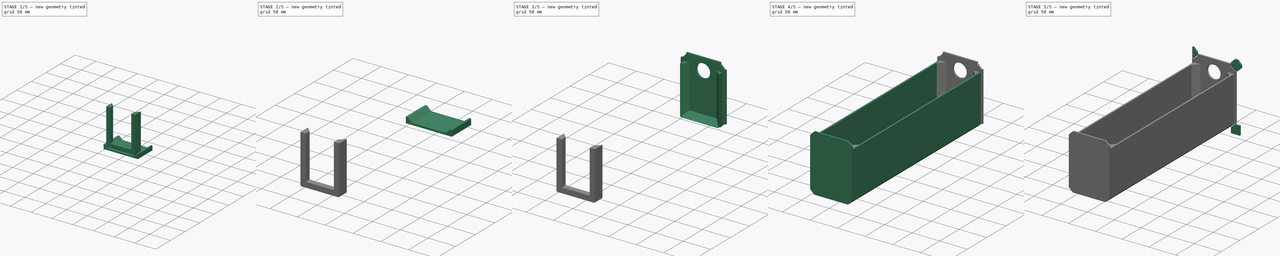
[diagram: build sequence overview — one tinted view per stage of 5, left to right]
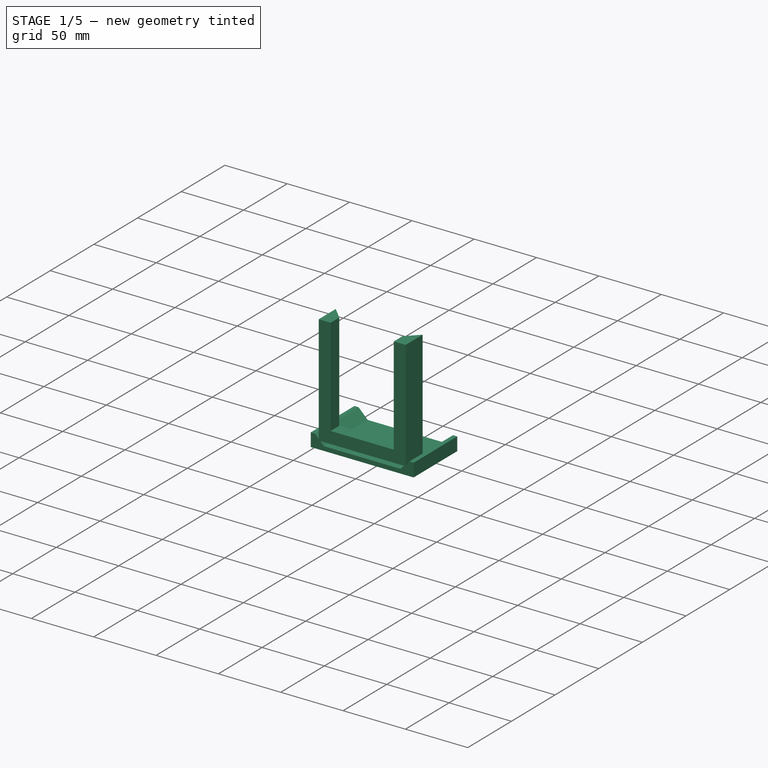
[diagram: stage 1 of 5 — iso view after this stage's code; geometry added in this stage tinted green]
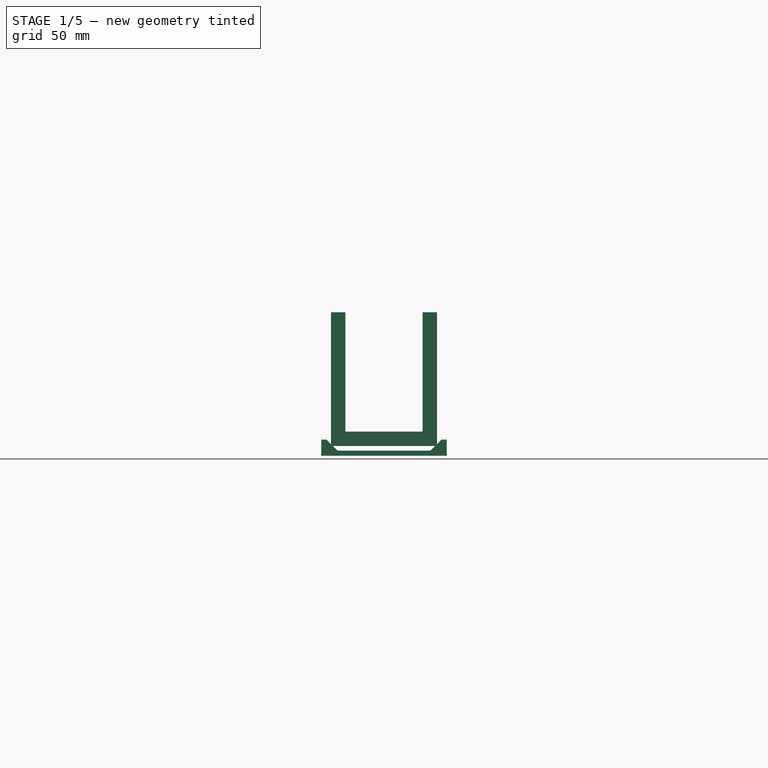
[diagram: stage 1 of 5 — front view after this stage's code; geometry added in this stage tinted green]
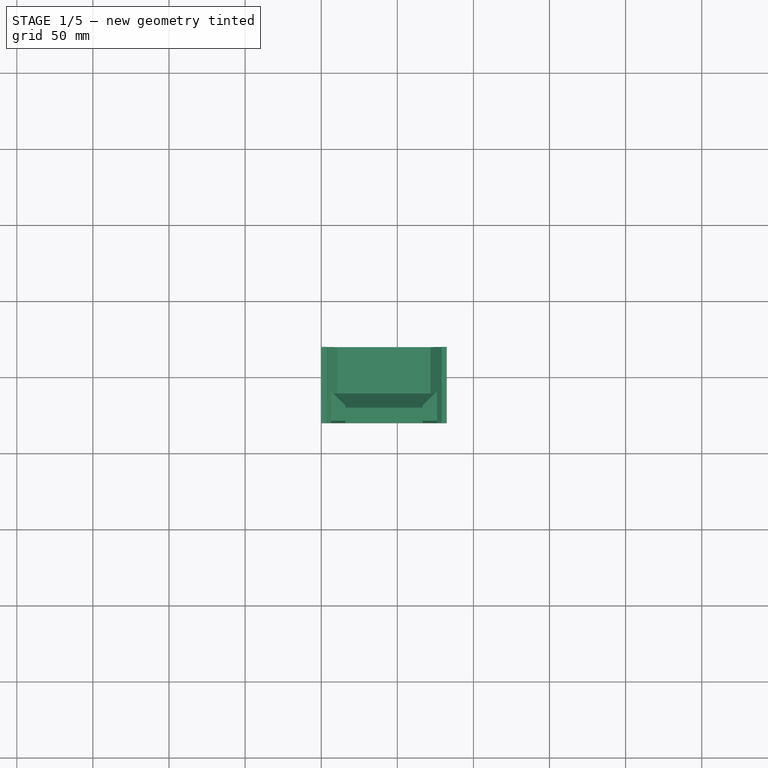
[diagram: stage 1 of 5 — top view after this stage's code; geometry added in this stage tinted green]
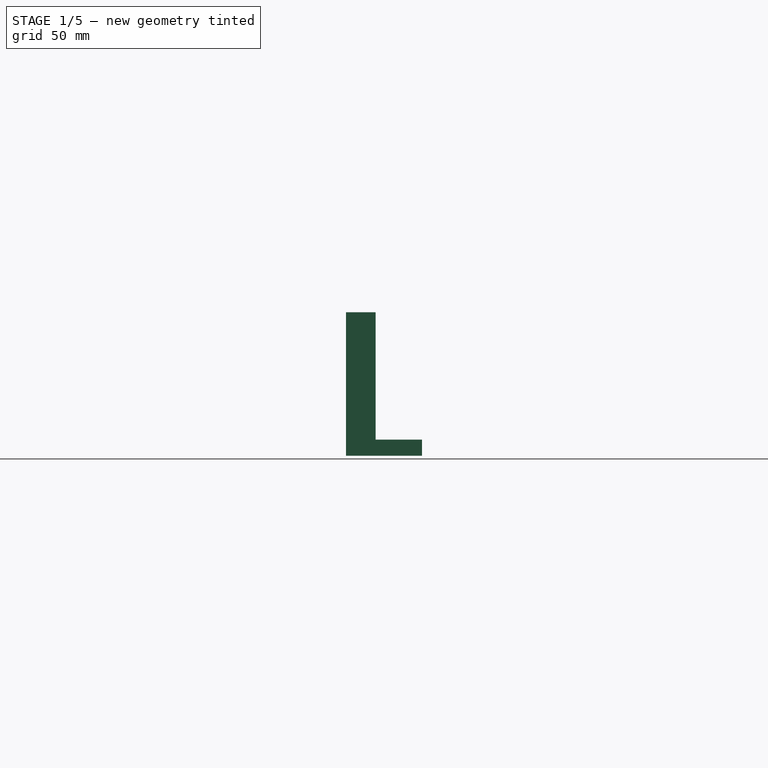
[diagram: stage 1 of 5 — right view after this stage's code; geometry added in this stage tinted green]
FCSTD DOCUMENT  (FreeCAD 0.19RUnknown)
Label: drawer-v4
License: All rights reserved
LicenseURL: http://en.wikipedia.org/wiki/All_rights_reserved
objects: Sketcher::SketchObject×16, Part::Extrusion×12, Part::Cut×3, Part::Sweep×2, Spreadsheet::Sheet×1, Part::Chamfer×1, Part::MultiFuse×1
note: 35 computed .brp shape members not serialized (recipe doc carries the construction recipe); baked Part::Feature solids carry a one-line shape summary decoded from their .brp

FEATURE [Spreadsheet::Sheet] Spreadsheet  label="dat"
  cells = A1=free_space; D1=number of drawer; A2=x; B2(x)=330; D2=nx; E2(nx)=4; A3=y; B3(y)=330; A4=z; B4(z)=330; D4=nz; E4(nz)=3; A6=planks; A7=w; B7(w)=15; A9=walls_tube; A10=r; B10(r)=3; C10=vertical_horizontal walls; A11=r2; B11(r2)=3; C11=diagonal walls; A13=screw; A14=sd; B14(sd)=1.9; C14=screw_diammeter; A16=margins; A17=mar; B17(mar)=0.4; A19=drawer; A20=dw; B20(dw)=3; C20=drawer_wall; A21=dfy; B21(dfy)=3; C21=drawer_front_and_back_thickness; A22=dfm; B22(dfm)=0.5; C22=drawer_front_margins; A24=joint; A25=jm; B25(jm)=1; A28=separator; A29=sm; B29(sm)=0.3; C29=separator margin; A30=stp; B30(stp)=4; C30=separator top part
FEATURE [Sketcher::SketchObject] Sketch001  label="drawer_tube"
  FullyConstrained = true
  Placement = pos=(0,0,0) rot=(1,0,0;1.5708rad)
  expr: Constraints[10] = <<dat>>.x / <<dat>>.nx
  expr: Constraints[57] = <<dat>>.sd
  expr: Constraints[11] = <<dat>>.z / <<dat>>.nz
  expr: Constraints[20] = <<dat>>.r
  expr: Constraints[63] = <<dat>>.sd
  expr: Constraints[21] = <<dat>>.r
  expr: Constraints[66] = <<dat>>.sd
  expr: Constraints[22] = <<dat>>.r
  expr: Constraints[23] = <<dat>>.r
  expr: Constraints[26] = <<dat>>.sd
  expr: Constraints[35] = <<dat>>.r2
  sketch-geometry (23):
    g0: LineSegment StartX=0 StartY=110 StartZ=0 EndX=82.5 EndY=110 EndZ=0
    g1: LineSegment StartX=82.5 StartY=110 StartZ=0 EndX=82.5 EndY=0 EndZ=0
    g2: LineSegment StartX=82.5 StartY=0 StartZ=0 EndX=0 EndY=0 EndZ=0
    g3: LineSegment StartX=0 StartY=0 StartZ=0 EndX=0 EndY=110 EndZ=0
    g4: LineSegment StartX=3 StartY=107 StartZ=0 EndX=79.5 EndY=107 EndZ=0
    g5: LineSegment StartX=79.5 StartY=107 StartZ=0 EndX=79.5 EndY=3 EndZ=0
    g6: LineSegment StartX=79.5 StartY=3 StartZ=0 EndX=3 EndY=3 EndZ=0
    g7: LineSegment StartX=3 StartY=3 StartZ=0 EndX=3 EndY=107 EndZ=0
    g8: Circle CenterX=3.95 CenterY=106.05 CenterZ=0 NormalX=0 NormalY=0 NormalZ=1 AngleXU=0 Radius=0.95
    g9: LineSegment StartX=3 StartY=99.5139 StartZ=0 EndX=10.4861 EndY=107 EndZ=0
    g10: LineSegment StartX=3.95 StartY=106.05 StartZ=0 EndX=6.74307 EndY=103.257 EndZ=0
    g11: GeomPoint X=4.62175 Y=105.378 Z=0
    g12: LineSegment StartX=3 StartY=99.5139 StartZ=0 EndX=3 EndY=10.4861 EndZ=0
    g13: LineSegment StartX=3 StartY=10.4861 StartZ=0 EndX=10.4861 EndY=3 EndZ=0
    g14: LineSegment StartX=10.4861 StartY=3 StartZ=0 EndX=72.0139 EndY=3 EndZ=0
    g15: LineSegment StartX=72.0139 StartY=3 StartZ=0 EndX=79.5 EndY=10.4861 EndZ=0
    g16: LineSegment StartX=79.5 StartY=10.4861 StartZ=0 EndX=79.5 EndY=99.5139 EndZ=0
    g17: LineSegment StartX=79.5 StartY=99.5139 StartZ=0 EndX=72.0139 EndY=107 EndZ=0
    g18: LineSegment StartX=72.0139 StartY=107 StartZ=0 EndX=10.4861 EndY=107 EndZ=0
    g19: Circle CenterX=78.55 CenterY=106.05 CenterZ=0 NormalX=0 NormalY=0 NormalZ=1 AngleXU=0 Radius=0.95
    g20: LineSegment StartX=3 StartY=99.5139 StartZ=0 EndX=79.5 EndY=99.5139 EndZ=0
    g21: Circle CenterX=3.95 CenterY=3.95 CenterZ=0 NormalX=0 NormalY=0 NormalZ=1 AngleXU=0 Radius=0.95
    g22: Circle CenterX=78.55 CenterY=3.95 CenterZ=0 NormalX=0 NormalY=0 NormalZ=1 AngleXU=0 Radius=0.95
  constraints (67):
    c: Coincident(g0,g1)
    c: Coincident(g1,g2)
    c: Coincident(g2,g3)
    c: Coincident(g3,g0)
    c: Horizontal(g0)
    c: Horizontal(g2)
    c: Vertical(g1)
    c: Vertical(g3)
    c: PointOnObject(g0,g-2)
    c: PointOnObject(g1,g-1)
    c: DistanceX(g0,g0) = 82.5
    c: DistanceY(g1,g1) = 110
    c: Coincident(g4,g5)
    c: Coincident(g5,g6)
    c: Coincident(g6,g7)
    c: Coincident(g7,g4)
    c: Horizontal(g4)
    c: Horizontal(g6)
    c: Vertical(g5)
    c: Vertical(g7)
    c: DistanceX(g4,g0) = 3
    c: DistanceY(g4,g0) = 3
    c: DistanceX(g0,g4) = 3
    c: DistanceY(g1,g5) = 3
    c: Tangent(g8,g7)
    c: Tangent(g8,g4)
    c: Diameter(g8) = 1.9
    c: PointOnObject(g9,g7)
    c: PointOnObject(g9,g4)
    c: Angle(g7,g9) = 2.35619
    c: Coincident(g10,g8)
    c: PointOnObject(g10,g9)
    c: Perpendicular(g9,g10)
    c: PointOnObject(g11,g8)
    c: PointOnObject(g11,g10)
    c: Distance(g11,g10) = 3
    c: Coincident(g12,g9)
    c: PointOnObject(g12,g7)
    c: Coincident(g13,g12)
    c: PointOnObject(g13,g6)
    c: Coincident(g14,g13)
    c: PointOnObject(g14,g6)
    c: Coincident(g15,g14)
    c: PointOnObject(g15,g5)
    c: Coincident(g16,g15)
    c: PointOnObject(g16,g5)
    c: Coincident(g17,g16)
    c: PointOnObject(g17,g4)
    c: Coincident(g18,g17)
    c: Coincident(g18,g9)
    c: Equal(g18,g14)
    c: Equal(g12,g16)
    c: Angle(g13,g7) = 2.35619
    c: Angle(g16,g15) = 2.35619
    c: Angle(g17,g16) = 2.35619
    c: Tangent(g19,g4)
    c: Tangent(g19,g5)
    c: Diameter(g19) = 1.9
    c: Coincident(g20,g9)
    c: Horizontal(g20)
    c: Coincident(g16,g20)
    c: Tangent(g21,g7)
    c: Tangent(g21,g6)
    c: Diameter(g21) = 1.9
    c: Tangent(g22,g6)
    c: Tangent(g22,g5)
    c: Diameter(g22) = 1.9
FEATURE [Part::Extrusion] Extrude  label="tube_e"
  Base = -> Sketch001
  Dir = (0,-1,2e-16)
  DirMode = 2
  FaceMakerClass = Part::FaceMakerBullseye
  LengthFwd = 330
  LengthRev = 0
  Solid = true
  Symmetric = false
  expr: LengthFwd = <<dat>>.y
FEATURE [Sketcher::SketchObject] Sketch  label="drawer_tub"
  ExternalGeometry = -> [Extrude]
  FullyConstrained = true
  MapMode = 5
  Placement = pos=(0,1e-16,0) rot=(0,0.707107,0.707107;3.14159rad)
  Support = -> [Extrude]
  expr: Constraints[77] = <<dat>>.stp + 1
  expr: Constraints[56] = <<dat>>.dw
  expr: Constraints[52] = <<dat>>.dw
  expr: Constraints[48] = <<dat>>.dw
  expr: Constraints[35] = <<dat>>.mar
  expr: Constraints[26] = <<dat>>.mar
  expr: Constraints[22] = <<dat>>.mar
  expr: Constraints[43] = <<dat>>.dw
  expr: Constraints[69] = <<dat>>.stp + 1
  expr: Constraints[20] = <<dat>>.mar
  expr: Constraints[31] = <<dat>>.mar
  expr: Constraints[30] = <<dat>>.mar
  expr: Constraints[21] = <<dat>>.mar
  expr: Constraints[61] = <<dat>>.dw
  expr: Constraints[19] = <<dat>>.mar
  sketch-geometry (27):
    g0: LineSegment StartX=-79.1 StartY=10.6518 StartZ=0 EndX=-71.8482 EndY=3.4 EndZ=0
    g1: LineSegment StartX=-71.8482 StartY=3.4 StartZ=0 EndX=-10.6518 EndY=3.4 EndZ=0
    g2: LineSegment StartX=-10.6518 StartY=3.4 StartZ=0 EndX=-3.4 EndY=10.6518 EndZ=0
    g3: LineSegment StartX=-3.4 StartY=10.6518 StartZ=0 EndX=-3.4 EndY=99.3482 EndZ=0
    g4: LineSegment StartX=-3.4 StartY=99.3482 StartZ=0 EndX=-10.6518 EndY=106.6 EndZ=0
    g5: LineSegment StartX=-10.6518 StartY=106.6 StartZ=0 EndX=-71.8482 EndY=106.6 EndZ=0
    g6: LineSegment StartX=-71.8482 StartY=106.6 StartZ=0 EndX=-79.1 EndY=99.3482 EndZ=0
    g7: LineSegment StartX=-79.1 StartY=99.3482 StartZ=0 EndX=-79.1 EndY=10.6518 EndZ=0
    g8: LineSegment StartX=-71.8482 StartY=106.6 StartZ=0 EndX=-72.131 EndY=106.883 EndZ=0
    g9: LineSegment StartX=-79.5 StartY=10.4861 StartZ=0 EndX=-79.2172 EndY=10.769 EndZ=0
    g10: LineSegment StartX=-10.4861 StartY=3 StartZ=0 EndX=-10.769 EndY=3.28284 EndZ=0
    g11: LineSegment StartX=-10.6518 StartY=106.6 StartZ=0 EndX=-10.369 EndY=106.883 EndZ=0
    g12: LineSegment StartX=-76.1 StartY=102.348 StartZ=0 EndX=-76.1 EndY=11.8945 EndZ=0
    g13: LineSegment StartX=-76.1 StartY=11.8945 StartZ=0 EndX=-70.6055 EndY=6.4 EndZ=0
    g14: LineSegment StartX=-70.6055 StartY=6.4 StartZ=0 EndX=-11.8945 EndY=6.4 EndZ=0
    g15: LineSegment StartX=-11.8945 StartY=6.4 StartZ=0 EndX=-6.4 EndY=11.8945 EndZ=0
    g16: LineSegment StartX=-6.4 StartY=11.8945 StartZ=0 EndX=-6.4 EndY=102.348 EndZ=0
    g17: LineSegment StartX=-76.1 StartY=102.348 StartZ=0 EndX=-79.1 EndY=99.3482 EndZ=0
    g18: LineSegment StartX=-3.4 StartY=99.3482 StartZ=0 EndX=-6.4 EndY=102.348 EndZ=0
    g19: LineSegment StartX=-78.2213 StartY=9.77315 StartZ=0 EndX=-76.1 EndY=11.8945 EndZ=0
    g20: LineSegment StartX=-11.8945 StartY=6.4 StartZ=0 EndX=-9.77315 EndY=4.27868 EndZ=0
    g21: LineSegment StartX=-79.1 StartY=10.6518 StartZ=0 EndX=-79.1 EndY=94.3482 EndZ=0
    g22: LineSegment StartX=-79.1 StartY=94.3482 StartZ=0 EndX=-76.1 EndY=94.3482 EndZ=0
    g23: LineSegment StartX=-76.1 StartY=94.3482 StartZ=0 EndX=-76.1 EndY=11.8945 EndZ=0
    g24: LineSegment StartX=-6.4 StartY=11.8945 StartZ=0 EndX=-6.4 EndY=94.3482 EndZ=0
    g25: LineSegment StartX=-6.4 StartY=94.3482 StartZ=0 EndX=-3.4 EndY=94.3482 EndZ=0
    g26: LineSegment StartX=-3.4 StartY=94.3482 StartZ=0 EndX=-3.4 EndY=10.6518 EndZ=0
  constraints (78):
    c: Coincident(g1,g0)
    c: Horizontal(g1)
    c: Coincident(g2,g1)
    c: Coincident(g3,g2)
    c: Vertical(g3)
    c: Coincident(g4,g3)
    c: Coincident(g5,g4)
    c: Horizontal(g5)
    c: Coincident(g6,g5)
    c: Coincident(g7,g6)
    c: Vertical(g7)
    c: Coincident(g7,g0)
    c: Parallel(g-7,g0)
    c: Parallel(g-9,g2)
    c: Parallel(g4,g-6)
    c: Parallel(g6,g-4)
    c: Coincident(g8,g5)
    c: PointOnObject(g8,g-4)
    c: Perpendicular(g-4,g8)
    c: DistanceY(g5,g-5) = 0.4
    c: Distance(g8) = 0.4
    c: DistanceX(g-4,g6) = 0.4
    c: DistanceY(g-8,g0) = 0.4
    c: Coincident(g9,g-7)
    c: PointOnObject(g9,g0)
    c: Perpendicular(g-7,g9)
    c: Distance(g9) = 0.4
    c: Coincident(g10,g-9)
    c: PointOnObject(g10,g2)
    c: Perpendicular(g-9,g10)
    c: Distance(g10) = 0.4
    c: DistanceX(g2,g-10) = 0.4
    c: Coincident(g11,g4)
    c: PointOnObject(g11,g-6)
    c: Perpendicular(g-6,g11)
    c: Distance(g11) = 0.4
    c: Vertical(g12)
    c: Coincident(g13,g12)
    c: Coincident(g14,g13)
    c: Horizontal(g14)
    c: Coincident(g15,g14)
    c: Coincident(g16,g15)
    c: Vertical(g16)
    c: DistanceX(g7,g12) = 3
    c: PointOnObject(g12,g6)
    c: Coincident(g17,g12)
    c: Coincident(g17,g7)
    c: PointOnObject(g16,g4)
    c: DistanceX(g16,g3) = 3
    c: Coincident(g18,g3)
    c: Coincident(g18,g16)
    c: Parallel(g-7,g13)
    c: DistanceY(g0,g13) = 3
    c: PointOnObject(g19,g0)
    c: Coincident(g19,g12)
    c: Perpendicular(g0,g19)
    c: Distance(g19) = 3
    c: Parallel(g-9,g15)
    c: Coincident(g20,g14)
    c: PointOnObject(g20,g2)
    c: Perpendicular(g2,g20)
    c: Distance(g20) = 3
    c: Coincident(g21,g0)
    c: PointOnObject(g21,g7)
    c: Coincident(g22,g21)
    c: PointOnObject(g22,g12)
    c: Horizontal(g22)
    c: Coincident(g23,g22)
    c: Coincident(g23,g13)
    c: DistanceY(g21,g6) = 5
    c: Coincident(g24,g15)
    c: PointOnObject(g24,g16)
    c: Coincident(g25,g24)
    c: PointOnObject(g25,g3)
    c: Horizontal(g25)
    c: Coincident(g26,g25)
    c: Coincident(g26,g2)
    c: DistanceY(g25,g3) = 5
FEATURE [Part::Extrusion] Extrude001  label="drawer_tube_e"
  Base = -> Sketch
  Dir = (0,1,-2e-16)
  DirMode = 2
  FaceMakerClass = Part::FaceMakerBullseye
  LengthFwd = -330
  LengthRev = 0
  Solid = true
  Symmetric = false
  expr: LengthFwd = -<<dat>>.z
FEATURE [Sketcher::SketchObject] Sketch011  label="drawer_front_support_profile"
  ExternalGeometry = -> [Extrude001]
  FullyConstrained = true
  MapMode = 5
  Placement = pos=(0,2.09e-14,94.3482) rot=(0,0,1;0rad)
  Support = -> [Extrude001]
  sketch-geometry (3):
    g0: LineSegment StartX=6.4 StartY=0 StartZ=0 EndX=6.4 EndY=-10 EndZ=0
    g1: LineSegment StartX=6.4 StartY=0 StartZ=0 EndX=16.4 EndY=0 EndZ=0
    g2: LineSegment StartX=16.4 StartY=0 StartZ=0 EndX=6.4 EndY=-10 EndZ=0
  constraints (8):
    c: Coincident(g0,g-3)
    c: PointOnObject(g0,g-3)
    c: DistanceY(g0,g0) = 10
    c: Coincident(g1,g0)
    c: PointOnObject(g1,g-1)
    c: Equal(g0,g1)
    c: Coincident(g2,g1)
    c: Coincident(g2,g0)
FEATURE [Sketcher::SketchObject] Sketch012  label="drawer_back_support_path"
  ExternalGeometry = -> [Extrude001]
  FullyConstrained = true
  MapMode = 5
  Placement = pos=(0,-330,7.33e-14) rot=(1,0,0;1.5708rad)
  Support = -> [Extrude001]
  expr: Constraints[4] = <<dat>>.sd + 8 - <<dat>>.mar
  expr: Constraints[7] = <<dat>>.sd + 8 - <<dat>>.mar
  expr: Constraints[13] = <<dat>>.sd + 8 - <<dat>>.mar
  sketch-geometry (5):
    g0: LineSegment StartX=15.9 StartY=94.3482 StartZ=0 EndX=15.9 EndY=15.9 EndZ=0
    g1: LineSegment StartX=6.4 StartY=94.3482 StartZ=0 EndX=15.9 EndY=94.3482 EndZ=0
    g2: LineSegment StartX=76.1 StartY=94.3482 StartZ=0 EndX=66.6 EndY=94.3482 EndZ=0
    g3: LineSegment StartX=66.6 StartY=94.3482 StartZ=0 EndX=66.6 EndY=15.9 EndZ=0
    g4: LineSegment StartX=15.9 StartY=15.9 StartZ=0 EndX=66.6 EndY=15.9 EndZ=0
  constraints (14):
    c: Vertical(g0)
    c: Coincident(g1,g-3)
    c: Coincident(g1,g0)
    c: Horizontal(g1)
    c: DistanceX(g1,g1) = 9.5
    c: Coincident(g2,g-7)
    c: Horizontal(g2)
    c: DistanceX(g2,g2) = 9.5
    c: Coincident(g3,g2)
    c: Vertical(g3)
    c: Coincident(g4,g0)
    c: Coincident(g4,g3)
    c: Horizontal(g4)
    c: DistanceY(g-5,g0) = 9.5
FEATURE [Sketcher::SketchObject] Sketch013  label="drawer_front_support_path"
  ExternalGeometry = -> [Sketch]
  FullyConstrained = true
  Placement = pos=(0,0,0) rot=(1,0,0;1.5708rad)
  sketch-geometry (5):
    g0: LineSegment StartX=6.4 StartY=94.3482 StartZ=0 EndX=16.4 EndY=94.3482 EndZ=0
    g1: LineSegment StartX=76.1 StartY=94.3482 StartZ=0 EndX=66.1 EndY=94.3482 EndZ=0
    g2: LineSegment StartX=16.4 StartY=94.3482 StartZ=0 EndX=16.4 EndY=16.4 EndZ=0
    g3: LineSegment StartX=16.4 StartY=16.4 StartZ=0 EndX=66.1 EndY=16.4 EndZ=0
    g4: LineSegment StartX=66.1 StartY=94.3482 StartZ=0 EndX=66.1 EndY=16.4 EndZ=0
  constraints (14):
    c: Coincident(g0,g-3)
    c: Horizontal(g0)
    c: DistanceX(g0,g0) = 10
    c: Coincident(g1,g-7)
    c: Horizontal(g1)
    c: DistanceX(g1,g1) = 10
    c: Coincident(g2,g0)
    c: Vertical(g2)
    c: Coincident(g3,g2)
    c: Horizontal(g3)
    c: Coincident(g4,g1)
    c: Vertical(g4)
    c: Coincident(g4,g3)
    c: DistanceY(g-6,g3) = 10
FEATURE [Part::Sweep] Sweep  label="drawer_back_support"
  Frenet = true
  Sections = -> [Sketch009]
  Solid = true
  Spine = -> Sketch012
  Transition = 1
FEATURE [Sketcher::SketchObject] Sketch014  label="drawer_back_support_negative"
  ExternalGeometry = -> [Extrude001]
  FullyConstrained = true
  MapMode = 5
  Placement = pos=(0,-330,7.33e-14) rot=(1,0,0;1.5708rad)
  Support = -> [Extrude001]
  sketch-geometry (8):
    g0: LineSegment StartX=71.8482 StartY=3.4 StartZ=0 EndX=79.1 EndY=10.6518 EndZ=0
    g1: LineSegment StartX=79.1 StartY=10.6518 StartZ=0 EndX=82.5 EndY=10.6518 EndZ=0
    g2: LineSegment StartX=82.5 StartY=10.6518 StartZ=0 EndX=82.5 EndY=0 EndZ=0
    g3: LineSegment StartX=82.5 StartY=0 StartZ=0 EndX=0 EndY=0 EndZ=0
    g4: LineSegment StartX=0 StartY=0 StartZ=0 EndX=0 EndY=10.6518 EndZ=0
    g5: LineSegment StartX=0 StartY=10.6518 StartZ=0 EndX=3.4 EndY=10.6518 EndZ=0
    g6: LineSegment StartX=3.4 StartY=10.6518 StartZ=0 EndX=10.6518 EndY=3.4 EndZ=0
    g7: LineSegment StartX=10.6518 StartY=3.4 StartZ=0 EndX=71.8482 EndY=3.4 EndZ=0
  constraints (19):
    c: Coincident(g0,g-4)
    c: Coincident(g0,g-4)
    c: Coincident(g1,g0)
    c: Horizontal(g1)
    c: Coincident(g2,g1)
    c: Vertical(g2)
    c: Coincident(g3,g2)
    c: Coincident(g3,g-1)
    c: Horizontal(g3)
    c: Coincident(g4,g3)
    c: PointOnObject(g4,g-2)
    c: Coincident(g5,g4)
    c: Coincident(g5,g-3)
    c: Horizontal(g5)
    c: Coincident(g6,g5)
    c: Coincident(g6,g-3)
    c: Coincident(g7,g6)
    c: Coincident(g7,g0)
    c: Equal(g1,g5)
FEATURE [Part::Extrusion] Extrude012  label="drawer_back_support_negative_e"
  Base = -> Sketch014
  Dir = (0,-1,2e-16)
  DirMode = 2
  FaceMakerClass = Part::FaceMakerBullseye
  LengthFwd = -50
  LengthRev = 0
  Solid = true
  Symmetric = false
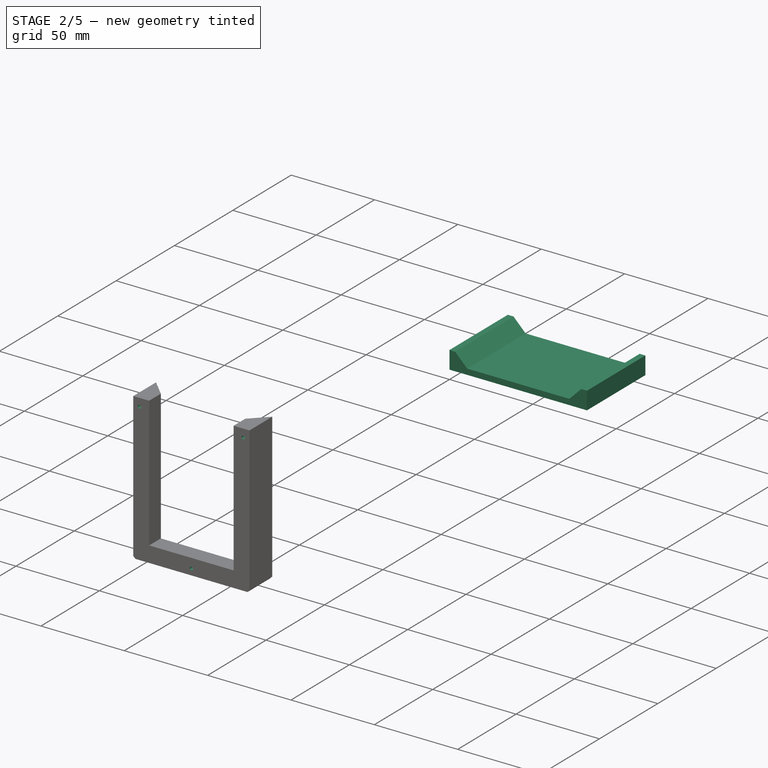
[diagram: stage 2 of 5 — iso view after this stage's code; geometry added in this stage tinted green]
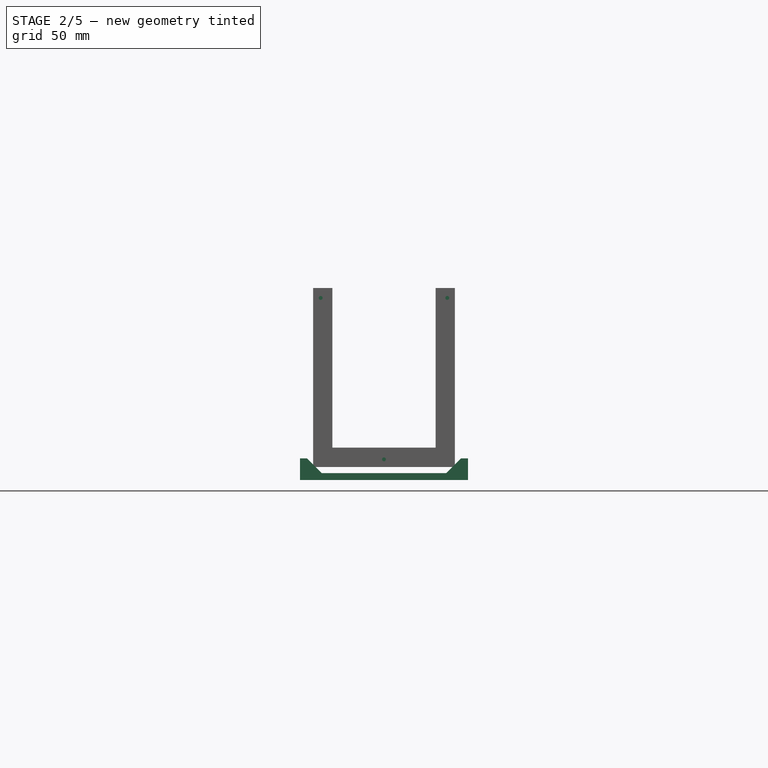
[diagram: stage 2 of 5 — front view after this stage's code; geometry added in this stage tinted green]
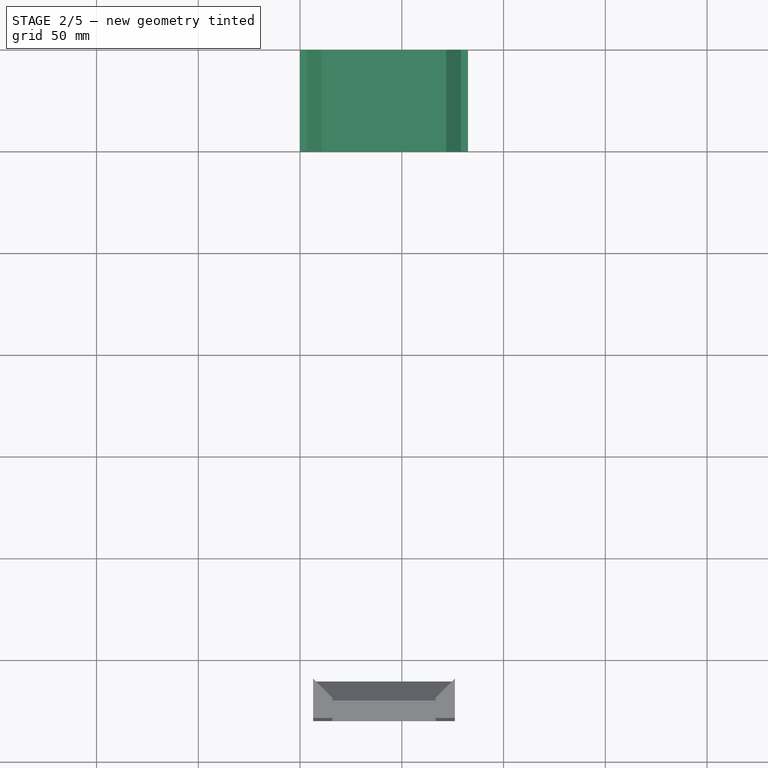
[diagram: stage 2 of 5 — top view after this stage's code; geometry added in this stage tinted green]
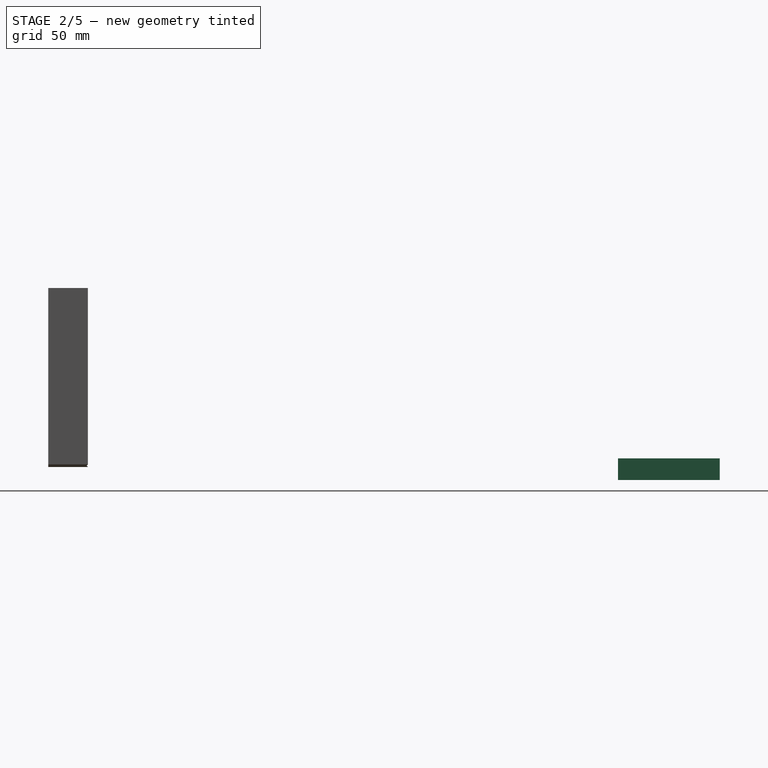
[diagram: stage 2 of 5 — right view after this stage's code; geometry added in this stage tinted green]
FEATURE [Part::Extrusion] Extrude011  label="back_holes_e"
  Base = -> Sketch010
  Dir = (0,-1,2e-16)
  DirMode = 2
  FaceMakerClass = Part::FaceMakerBullseye
  LengthFwd = 10
  LengthRev = 0
  Reversed = true
  Solid = true
  Symmetric = false
FEATURE [Part::Cut] Cut  label="drawer_back_support_cut"
  Base = -> Sweep
  Tool = -> Extrude012
FEATURE [Sketcher::SketchObject] Sketch015  label="drawer_front_negative_s"
  ExternalGeometry = -> [Extrude001]
  FullyConstrained = true
  MapMode = 5
  Placement = pos=(0,1e-16,0) rot=(0,0.707107,0.707107;3.14159rad)
  Support = -> [Extrude001]
  sketch-geometry (8):
    g0: LineSegment StartX=-3.4 StartY=10.6518 StartZ=0 EndX=0 EndY=10.6518 EndZ=0
    g1: LineSegment StartX=0 StartY=10.6518 StartZ=0 EndX=0 EndY=0 EndZ=0
    g2: LineSegment StartX=0 StartY=0 StartZ=0 EndX=-82.5 EndY=0 EndZ=0
    g3: LineSegment StartX=-82.5 StartY=0 StartZ=0 EndX=-82.5 EndY=10.6518 EndZ=0
    g4: LineSegment StartX=-82.5 StartY=10.6518 StartZ=0 EndX=-79.1 EndY=10.6518 EndZ=0
    g5: LineSegment StartX=-79.1 StartY=10.6518 StartZ=0 EndX=-71.8482 EndY=3.4 EndZ=0
    g6: LineSegment StartX=-71.8482 StartY=3.4 StartZ=0 EndX=-10.6518 EndY=3.4 EndZ=0
    g7: LineSegment StartX=-10.6518 StartY=3.4 StartZ=0 EndX=-3.4 EndY=10.6518 EndZ=0
  constraints (19):
    c: Coincident(g0,g-4)
    c: PointOnObject(g0,g-2)
    c: Horizontal(g0)
    c: Coincident(g1,g0)
    c: Coincident(g1,g-1)
    c: Coincident(g2,g1)
    c: PointOnObject(g2,g-1)
    c: Coincident(g3,g2)
    c: Vertical(g3)
    c: Coincident(g4,g3)
    c: Coincident(g4,g-3)
    c: Horizontal(g4)
    c: Equal(g4,g0)
    c: Coincident(g5,g4)
    c: Coincident(g5,g-3)
    c: Coincident(g6,g5)
    c: Coincident(g6,g-4)
    c: Coincident(g7,g6)
    c: Coincident(g7,g0)
FEATURE [Part::Extrusion] Extrude013  label="drawer_front_support_negative_e"
  Base = -> Sketch015
  Dir = (0,1,-2e-16)
  DirMode = 2
  FaceMakerClass = Part::FaceMakerBullseye
  LengthFwd = -50
  LengthRev = 0
  Solid = true
  Symmetric = false
FEATURE [Part::Cut] Cut002  label="drawer_back_support001"
  Base = -> Cut
  Tool = -> Extrude011
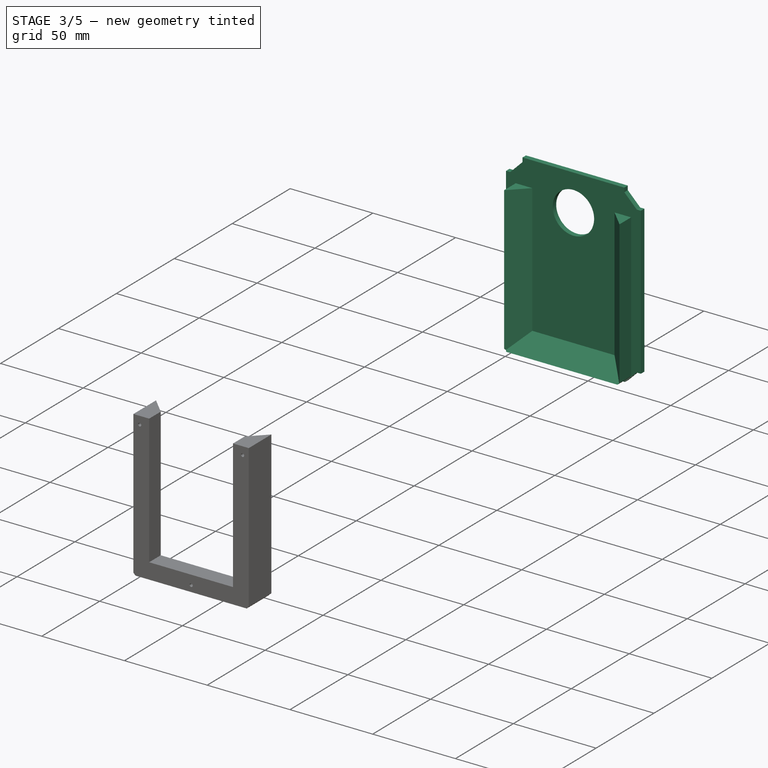
[diagram: stage 3 of 5 — iso view after this stage's code; geometry added in this stage tinted green]
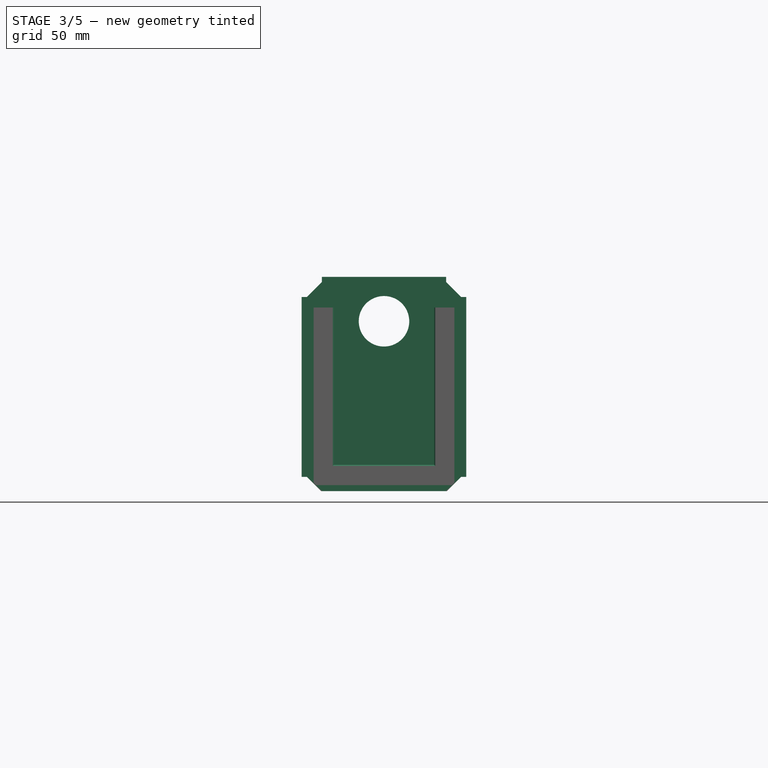
[diagram: stage 3 of 5 — front view after this stage's code; geometry added in this stage tinted green]
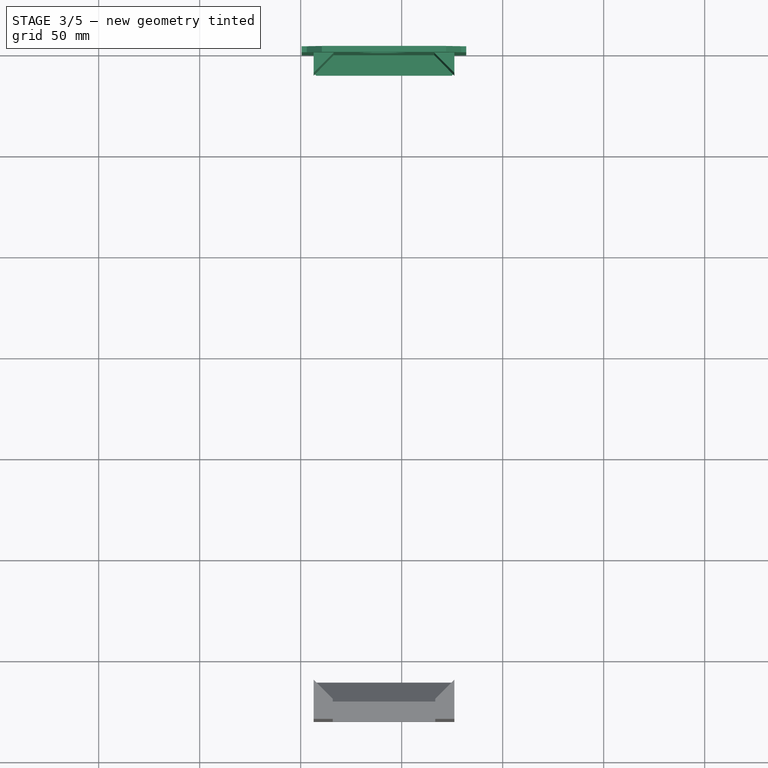
[diagram: stage 3 of 5 — top view after this stage's code; geometry added in this stage tinted green]
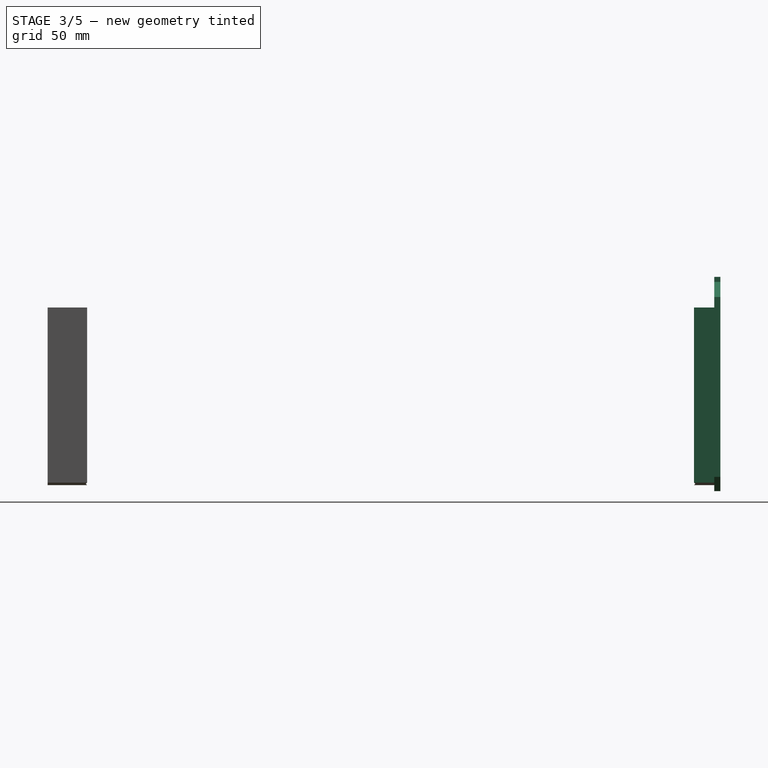
[diagram: stage 3 of 5 — right view after this stage's code; geometry added in this stage tinted green]
FEATURE [Sketcher::SketchObject] Sketch002  label="drawer_front"
  ExternalGeometry = -> [Extrude,Extrude001]
  FullyConstrained = true
  MapMode = 5
  Placement = pos=(0,1e-16,0) rot=(0,0.707107,0.707107;3.14159rad)
  Support = -> [Extrude001]
  expr: Constraints[30] = <<dat>>.dfm
  expr: Constraints[31] = <<dat>>.dfm
  expr: Constraints[29] = <<dat>>.dfm
  sketch-geometry (22):
    g0: LineSegment StartX=-82 StartY=99.5139 StartZ=0 EndX=-79.5 EndY=99.5139 EndZ=0
    g1: LineSegment StartX=-3 StartY=99.5139 StartZ=0 EndX=-10.4861 EndY=107 EndZ=0
    g2: LineSegment StartX=-10.4861 StartY=107 StartZ=0 EndX=-10.4861 EndY=109.5 EndZ=0
    g3: LineSegment StartX=-10.4861 StartY=109.5 StartZ=0 EndX=-72.0139 EndY=109.5 EndZ=0
    g4: LineSegment StartX=-72.0139 StartY=109.5 StartZ=0 EndX=-72.0139 EndY=107 EndZ=0
    g5: LineSegment StartX=-79.5 StartY=99.5139 StartZ=0 EndX=-72.0139 EndY=107 EndZ=0
    g6: Circle CenterX=-41.25 CenterY=87.5 CenterZ=0 NormalX=0 NormalY=0 NormalZ=1 AngleXU=0 Radius=12.5
    g7: LineSegment StartX=-0.5 StartY=99.5139 StartZ=0 EndX=-0.5 EndY=10.4861 EndZ=0
    g8: LineSegment StartX=-82 StartY=99.5139 StartZ=0 EndX=-82 EndY=10.4861 EndZ=0
    g9: LineSegment StartX=-82 StartY=10.4861 StartZ=0 EndX=-79.5 EndY=10.4861 EndZ=0
    g10: LineSegment StartX=-71.8482 StartY=3.4 StartZ=0 EndX=-72.4139 EndY=3.4 EndZ=0
    g11: LineSegment StartX=-72.4139 StartY=3.4 StartZ=0 EndX=-79.5 EndY=10.4861 EndZ=0
    g12: LineSegment StartX=-71.8482 StartY=3.4 StartZ=0 EndX=-10.6518 EndY=3.4 EndZ=0
    g13: LineSegment StartX=-10.0861 StartY=3.4 StartZ=0 EndX=-10.6518 EndY=3.4 EndZ=0
    g14: LineSegment StartX=-10.0861 StartY=3.4 StartZ=0 EndX=-3 EndY=10.4861 EndZ=0
    g15: LineSegment StartX=-3 StartY=10.4861 StartZ=0 EndX=-0.5 EndY=10.4861 EndZ=0
    g16: LineSegment StartX=-3 StartY=99.5139 StartZ=0 EndX=-0.5 EndY=99.5139 EndZ=0
    g17: LineSegment StartX=-41.25 StartY=87.5 StartZ=0 EndX=-41.25 EndY=100 EndZ=0
    g18: GeomPoint X=-41.25 Y=107 Z=0
    g19: LineSegment StartX=-41.25 StartY=107 StartZ=0 EndX=-72.0139 EndY=107 EndZ=0
    g20: LineSegment StartX=-41.25 StartY=107 StartZ=0 EndX=-10.4861 EndY=107 EndZ=0
    g21: LineSegment StartX=-41.25 StartY=100 StartZ=0 EndX=-41.25 EndY=107 EndZ=0
  constraints (54):
    c: Coincident(g0,g5)
    c: Coincident(g0,g-3)
    c: Coincident(g0,g8)
    c: Coincident(g4,g5)
    c: Coincident(g4,g-5)
    c: Coincident(g3,g4)
    c: Coincident(g2,g3)
    c: Coincident(g1,g2)
    c: Coincident(g1,g-5)
    c: Coincident(g16,g7)
    c: Horizontal(g16)
    c: Coincident(g7,g15)
    c: Coincident(g15,g14)
    c: Coincident(g14,g-14)
    c: Coincident(g14,g13)
    c: PointOnObject(g13,g-14)
    c: Horizontal(g13)
    c: Coincident(g13,g12)
    c: Coincident(g12,g-13)
    c: Horizontal(g10)
    c: Coincident(g10,g-11)
    c: Coincident(g10,g12)
    c: Coincident(g11,g10)
    c: PointOnObject(g10,g-12)
    c: Coincident(g11,g9)
    c: Coincident(g9,g-12)
    c: Coincident(g8,g9)
    c: Horizontal(g9)
    c: Vertical(g8)
    c: DistanceX(g-9,g0) = 0.5
    c: DistanceY(g3,g-9) = 0.5
    c: DistanceX(g7,g-9) = 0.5
    c: Horizontal(g15)
    c: Vertical(g7)
    c: Vertical(g2)
    c: Horizontal(g3)
    c: Vertical(g4)
    c: Horizontal(g0)
    c: Coincident(g17,g6)
    c: PointOnObject(g17,g6)
    c: Vertical(g17)
    c: Diameter(g6) = 25
    c: PointOnObject(g18,g-5)
    c: Coincident(g19,g18)
    c: Coincident(g19,g4)
    c: Coincident(g20,g19)
    c: Coincident(g20,g1)
    c: Equal(g20,g19)
    c: Coincident(g21,g17)
    c: Coincident(g21,g18)
    c: Vertical(g21)
    c: DistanceY(g21,g21) = 7
    c: Coincident(g1,g16)
    c: Coincident(g1,g-4)
FEATURE [Part::Extrusion] Extrude002  label="drawer_front_e"
  Base = -> Sketch002
  Dir = (0,1,-2e-16)
  DirMode = 2
  FaceMakerClass = Part::FaceMakerBullseye
  LengthFwd = 3
  LengthRev = 0
  Solid = true
  Symmetric = false
  expr: LengthFwd = <<dat>>.dfy
FEATURE [Part::Sweep] Sweep001  label="drawer_front_support_sweep"
  Frenet = true
  Sections = -> [Sketch011]
  Solid = true
  Spine = -> Sketch013
  Transition = 1
FEATURE [Part::Cut] Cut001  label="drawer_front_support_cut"
  Base = -> Sweep001
  Tool = -> Extrude013
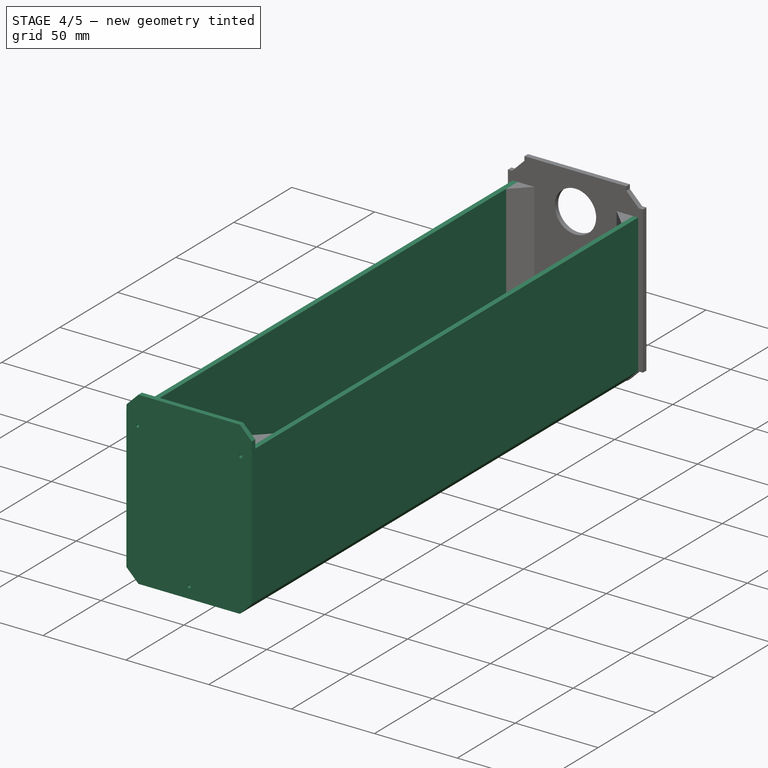
[diagram: stage 4 of 5 — iso view after this stage's code; geometry added in this stage tinted green]
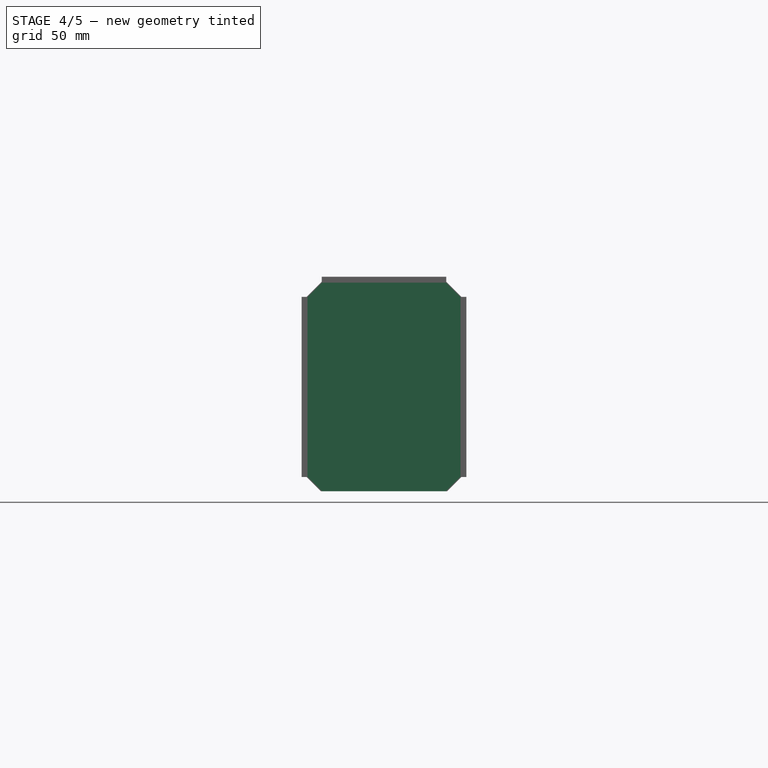
[diagram: stage 4 of 5 — front view after this stage's code; geometry added in this stage tinted green]
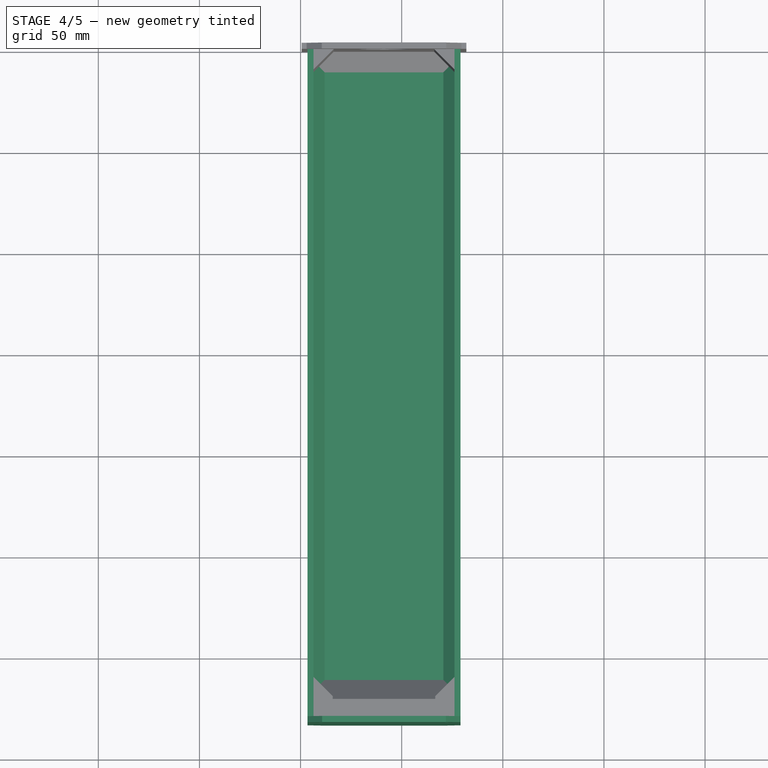
[diagram: stage 4 of 5 — top view after this stage's code; geometry added in this stage tinted green]
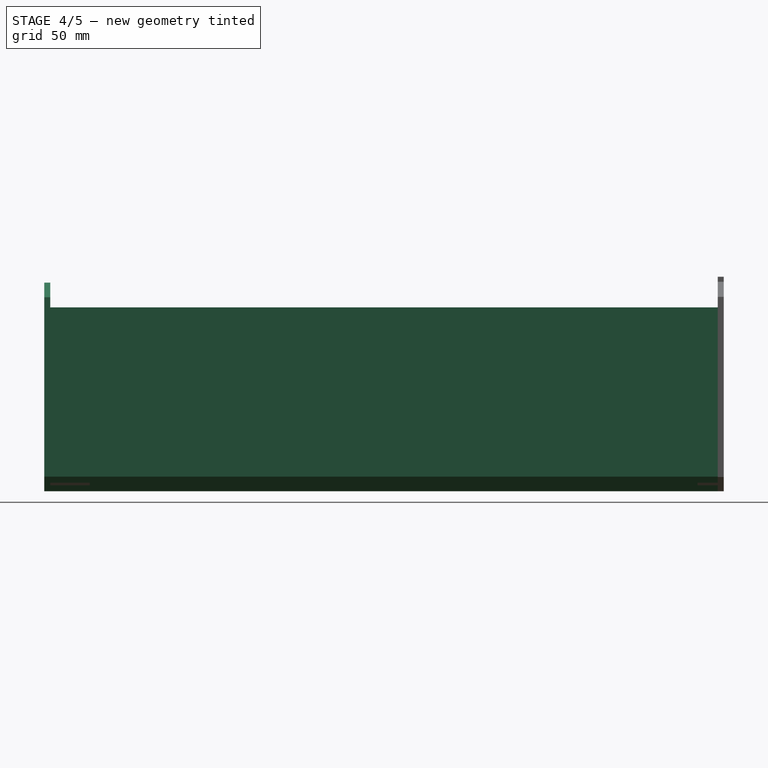
[diagram: stage 4 of 5 — right view after this stage's code; geometry added in this stage tinted green]
FEATURE [Part::Chamfer] Chamfer001  label="tube_ch"
  Base = -> Extrude
  Edges = 8 edges r=1: [Edge15,Edge18,Edge21,Edge24,Edge27,Edge30,Edge33,Edge35]
FEATURE [Sketcher::SketchObject] Sketch008  label="separator_s"
  ExternalGeometry = -> [Extrude001,Chamfer001]
  FullyConstrained = true
  MapMode = 5
  Placement = pos=(0,-330,7.3e-14) rot=(1,0,0;1.5708rad)
  expr: Constraints[24] = <<dat>>.mar
  expr: Constraints[47] = <<dat>>.mar
  expr: Constraints[25] = <<dat>>.mar
  expr: Constraints[30] = <<dat>>.mar
  expr: Constraints[31] = <<dat>>.mar
  expr: Constraints[26] = <<dat>>.mar
  expr: Constraints[38] = <<dat>>.mar
  expr: Constraints[35] = <<dat>>.mar
  expr: Constraints[37] = <<dat>>.mar
  expr: Constraints[36] = <<dat>>.mar
  expr: Constraints[43] = <<dat>>.mar
  expr: Constraints[42] = <<dat>>.mar
  sketch-geometry (16):
    g0: LineSegment StartX=3.4 StartY=94.7482 StartZ=0 EndX=6.8 EndY=94.7482 EndZ=0
    g1: LineSegment StartX=6.8 StartY=94.7482 StartZ=0 EndX=6.8 EndY=12.0602 EndZ=0
    g2: LineSegment StartX=6.8 StartY=12.0602 StartZ=0 EndX=12.0602 EndY=6.8 EndZ=0
    g3: LineSegment StartX=12.0602 StartY=6.8 StartZ=0 EndX=70.4398 EndY=6.8 EndZ=0
    g4: LineSegment StartX=70.4398 StartY=6.8 StartZ=0 EndX=75.7 EndY=12.0602 EndZ=0
    g5: LineSegment StartX=75.7 StartY=12.0602 StartZ=0 EndX=75.7 EndY=94.7482 EndZ=0
    g6: LineSegment StartX=75.7 StartY=94.7482 StartZ=0 EndX=79.1 EndY=94.7482 EndZ=0
    g7: LineSegment StartX=79.1 StartY=94.7482 StartZ=0 EndX=79.1 EndY=99.3482 EndZ=0
    g8: LineSegment StartX=79.1 StartY=99.3482 StartZ=0 EndX=71.8482 EndY=106.6 EndZ=0
    g9: LineSegment StartX=71.8482 StartY=106.6 StartZ=0 EndX=10.6518 EndY=106.6 EndZ=0
    g10: LineSegment StartX=10.6518 StartY=106.6 StartZ=0 EndX=3.4 EndY=99.3482 EndZ=0
    g11: LineSegment StartX=3.4 StartY=99.3482 StartZ=0 EndX=3.4 EndY=94.7482 EndZ=0
    g12: LineSegment StartX=6.8 StartY=12.0602 StartZ=0 EndX=6.51716 EndY=11.7773 EndZ=0
    g13: LineSegment StartX=70.4398 StartY=6.8 StartZ=0 EndX=70.7227 EndY=6.51716 EndZ=0
    g14: LineSegment StartX=71.8482 StartY=106.6 StartZ=0 EndX=72.131 EndY=106.883 EndZ=0
    g15: LineSegment StartX=10.6518 StartY=106.6 StartZ=0 EndX=10.369 EndY=106.883 EndZ=0
  constraints (48):
    c: Horizontal(g0)
    c: Coincident(g1,g0)
    c: Vertical(g1)
    c: Coincident(g2,g1)
    c: Coincident(g3,g2)
    c: Horizontal(g3)
    c: Coincident(g4,g3)
    c: Coincident(g5,g4)
    c: Vertical(g5)
    c: Coincident(g6,g5)
    c: Horizontal(g6)
    c: Coincident(g7,g6)
    c: Vertical(g7)
    c: Coincident(g8,g7)
    c: Coincident(g9,g8)
    c: Horizontal(g9)
    c: Coincident(g10,g9)
    c: Coincident(g11,g10)
    c: Coincident(g11,g0)
    c: Vertical(g11)
    c: Parallel(g8,g-10)
    c: Parallel(g10,g-5)
    c: Parallel(g-14,g4)
    c: Parallel(g-12,g2)
    c: DistanceX(g-5,g10) = 0.4
    c: DistanceY(g-3,g0) = 0.4
    c: DistanceX(g-6,g0) = 0.4
    c: Coincident(g12,g1)
    c: PointOnObject(g12,g-12)
    c: Perpendicular(g2,g12)
    c: Distance(g12) = 0.4
    c: DistanceY(g-13,g2) = 0.4
    c: Coincident(g13,g3)
    c: PointOnObject(g13,g-14)
    c: Perpendicular(g4,g13)
    c: Distance(g13) = 0.4
    c: DistanceX(g4,g-14) = 0.4
    c: DistanceY(g-8,g5) = 0.4
    c: DistanceX(g7,g-10) = 0.4
    c: Coincident(g14,g8)
    c: PointOnObject(g14,g-10)
    c: Perpendicular(g14,g8)
    c: Distance(g14) = 0.4
    c: DistanceY(g8,g-11) = 0.4
    c: Coincident(g15,g9)
    c: PointOnObject(g15,g-5)
    c: Perpendicular(g-5,g15)
    c: Distance(g15) = 0.4
FEATURE [Part::Extrusion] Extrude008  label="sep"
  Base = -> Sketch008
  Dir = (0,-1,2e-16)
  DirMode = 2
  FaceMakerClass = Part::FaceMakerBullseye
  LengthFwd = 1
  LengthRev = 0
  Solid = true
  Symmetric = false
FEATURE [Sketcher::SketchObject] Sketch009  label="drawer_back_support_profile"
  ExternalGeometry = -> [Extrude001]
  FullyConstrained = true
  MapMode = 13
  Placement = pos=(52.8667,-110,94.3482) rot=(0,1,0;3.14159rad)
  Support = -> [Extrude001]
  expr: Constraints[1] = <<dat>>.sd + 8 - <<dat>>.mar
  sketch-geometry (4):
    g0: LineSegment StartX=46.4667 StartY=-220 StartZ=0 EndX=36.9667 EndY=-220 EndZ=0
    g1: LineSegment StartX=36.9667 StartY=-220 StartZ=0 EndX=36.9667 EndY=-210 EndZ=0
    g2: LineSegment StartX=36.9667 StartY=-210 StartZ=0 EndX=46.4667 EndY=-200.5 EndZ=0
    g3: LineSegment StartX=46.4667 StartY=-200.5 StartZ=0 EndX=46.4667 EndY=-220 EndZ=0
  constraints (11):
    c: Horizontal(g0)
    c: DistanceX(g0,g0) = 9.5
    c: Coincident(g0,g-3)
    c: Vertical(g1)
    c: PointOnObject(g2,g-3)
    c: Coincident(g0,g3)
    c: Coincident(g2,g3)
    c: Coincident(g1,g0)
    c: Coincident(g2,g1)
    c: DistanceY(g1,g1) = 10
    c: Angle(g1,g2) = 2.35619
FEATURE [Sketcher::SketchObject] Sketch010  label="back_holes"
  FullyConstrained = false
  MapMode = 5
  Placement = pos=(0,-330,0) rot=(1,0,0;1.5708rad)
  expr: Constraints[0] = <<dat>>.sd
  expr: Constraints[28] = <<dat>>.sd
  sketch-geometry (15):
    g0: Circle CenterX=10.15 CenterY=89.481 CenterZ=0 NormalX=0 NormalY=0 NormalZ=1 AngleXU=0 Radius=0.95
    g1: LineSegment StartX=10.15 StartY=89.481 StartZ=0 EndX=5.2 EndY=89.481 EndZ=0
    g2: LineSegment StartX=10.15 StartY=89.481 StartZ=0 EndX=15.1 EndY=89.481 EndZ=0
    g3: LineSegment StartX=5.2 StartY=94.431 StartZ=0 EndX=15.1 EndY=94.431 EndZ=0
    g4: LineSegment StartX=10.15 StartY=89.481 StartZ=0 EndX=10.15 EndY=94.431 EndZ=0
    g5: Circle CenterX=72.35 CenterY=89.481 CenterZ=0 NormalX=0 NormalY=0 NormalZ=1 AngleXU=0 Radius=0.95
    g6: LineSegment StartX=67.4 StartY=94.431 StartZ=0 EndX=77.3 EndY=94.431 EndZ=0
    g7: LineSegment StartX=72.35 StartY=89.481 StartZ=0 EndX=67.4 EndY=89.481 EndZ=0
    g8: LineSegment StartX=72.35 StartY=89.481 StartZ=0 EndX=77.3 EndY=89.481 EndZ=0
    g9: LineSegment StartX=72.35 StartY=89.481 StartZ=0 EndX=72.35 EndY=94.431 EndZ=0
    g10: LineSegment StartX=15.4981 StartY=15.1 StartZ=0 EndX=41.25 EndY=15.1 EndZ=0
    g11: LineSegment StartX=41.25 StartY=15.1 StartZ=0 EndX=67.0019 EndY=15.1 EndZ=0
    g12: LineSegment StartX=41.25 StartY=15.1 StartZ=0 EndX=41.25 EndY=10.15 EndZ=0
    g13: LineSegment StartX=41.25 StartY=10.15 StartZ=0 EndX=41.25 EndY=5.2 EndZ=0
    g14: Circle CenterX=41.25 CenterY=10.15 CenterZ=0 NormalX=0 NormalY=0 NormalZ=1 AngleXU=0 Radius=0.95
  constraints (29):
    c: Diameter(g0) = 1.9
    c: Coincident(g1,g0)
    c: Horizontal(g1)
    c: Coincident(g2,g0)
    c: Horizontal(g2)
    c: Coincident(g4,g0)
    c: PointOnObject(g4,g3)
    c: Vertical(g4)
    c: Equal(g4,g1)
    c: Equal(g1,g2)
    c: Equal(g5,g0)
    c: Coincident(g7,g5)
    c: Horizontal(g7)
    c: Coincident(g8,g5)
    c: Horizontal(g8)
    c: Coincident(g9,g5)
    c: PointOnObject(g9,g6)
    c: Vertical(g9)
    c: Equal(g7,g8)
    c: Equal(g8,g9)
    c: Coincident(g11,g10)
    c: Equal(g11,g10)
    c: Coincident(g12,g10)
    c: Vertical(g12)
    c: Coincident(g13,g12)
    c: Vertical(g13)
    c: Equal(g12,g13)
    c: Coincident(g14,g12)
    c: Diameter(g14) = 1.9
FEATURE [Sketcher::SketchObject] Sketch003  label="drawer_back"
  ExternalGeometry = -> [Extrude001,Extrude,Sketch010]
  FullyConstrained = false
  MapMode = 5
  Placement = pos=(0,-330,7.33e-14) rot=(1,0,0;1.5708rad)
  Support = -> [Extrude001]
  expr: Constraints[25] = <<dat>>.mar
  expr: Constraints[19] = <<dat>>.mar
  expr: Constraints[14] = <<dat>>.mar
  sketch-geometry (15):
    g0: LineSegment StartX=79.1 StartY=99.3482 StartZ=0 EndX=71.8482 EndY=106.6 EndZ=0
    g1: LineSegment StartX=71.8482 StartY=106.6 StartZ=0 EndX=10.6518 EndY=106.6 EndZ=0
    g2: LineSegment StartX=10.6518 StartY=106.6 StartZ=0 EndX=3.43518 EndY=99.3834 EndZ=0
    g3: LineSegment StartX=3.4 StartY=94.3482 StartZ=0 EndX=3.43518 EndY=99.3834 EndZ=0
    g4: LineSegment StartX=3.4 StartY=94.3482 StartZ=0 EndX=3.4 EndY=10.6518 EndZ=0
    g5: LineSegment StartX=3.4 StartY=10.6518 StartZ=0 EndX=10.6518 EndY=3.4 EndZ=0
    g6: LineSegment StartX=10.6518 StartY=3.4 StartZ=0 EndX=71.8482 EndY=3.4 EndZ=0
    g7: LineSegment StartX=71.8482 StartY=3.4 StartZ=0 EndX=79.1 EndY=10.6518 EndZ=0
    g8: LineSegment StartX=79.1 StartY=10.6518 StartZ=0 EndX=79.1 EndY=94.3482 EndZ=0
    g9: LineSegment StartX=79.1 StartY=99.3482 StartZ=0 EndX=79.1 EndY=94.3482 EndZ=0
    g10: Circle CenterX=10.15 CenterY=89.481 CenterZ=0 NormalX=0 NormalY=0 NormalZ=1 AngleXU=0 Radius=0.95
    g11: Circle CenterX=41.25 CenterY=10.15 CenterZ=0 NormalX=0 NormalY=0 NormalZ=1 AngleXU=0 Radius=0.95
    g12: Circle CenterX=72.35 CenterY=89.481 CenterZ=0 NormalX=0 NormalY=0 NormalZ=1 AngleXU=0 Radius=0.95
    g13: LineSegment StartX=71.8482 StartY=106.6 StartZ=0 EndX=72.131 EndY=106.883 EndZ=0
    g14: LineSegment StartX=10.6518 StartY=106.6 StartZ=0 EndX=10.369 EndY=106.883 EndZ=0
  constraints (34):
    c: Coincident(g-4,g4)
    c: Coincident(g5,g4)
    c: Coincident(g5,g-5)
    c: Coincident(g6,g5)
    c: Coincident(g6,g-6)
    c: Coincident(g7,g6)
    c: Coincident(g7,g-7)
    c: Coincident(g8,g7)
    c: Coincident(g8,g-7)
    c: Coincident(g8,g9)
    c: Vertical(g9)
    c: Coincident(g9,g0)
    c: Parallel(g0,g-10)
    c: Coincident(g0,g1)
    c: DistanceY(g0,g-10) = 0.4
    c: Horizontal(g1)
    c: Coincident(g13,g0)
    c: PointOnObject(g13,g-10)
    c: Perpendicular(g-10,g13)
    c: Distance(g13) = 0.4
    c: Coincident(g2,g1)
    c: Parallel(g-8,g2)
    c: Coincident(g14,g1)
    c: PointOnObject(g14,g-8)
    c: Perpendicular(g-8,g14)
    c: Distance(g14) = 0.4
    c: Coincident(g2,g3)
    c: Coincident(g3,g-4)
    c: Coincident(g4,g3)
    c: Coincident(g10,g-11)
    c: Equal(g10,g-11)
    c: Coincident(g12,g-12)
    c: Equal(g11,g-13)
    c: Coincident(g11,g-13)
FEATURE [Part::Extrusion] Extrude010  label="drawer_back_e"
  Base = -> Sketch003
  Dir = (0,-1,2e-16)
  DirMode = 2
  FaceMakerClass = Part::FaceMakerBullseye
  LengthFwd = 3
  LengthRev = 0
  Solid = true
  Symmetric = false
  expr: LengthFwd = <<dat>>.dfy
FEATURE [Part::MultiFuse] Fusion  label="drawer_inside"
  Shapes = -> [Cut001,Cut002,Extrude002,Extrude001]
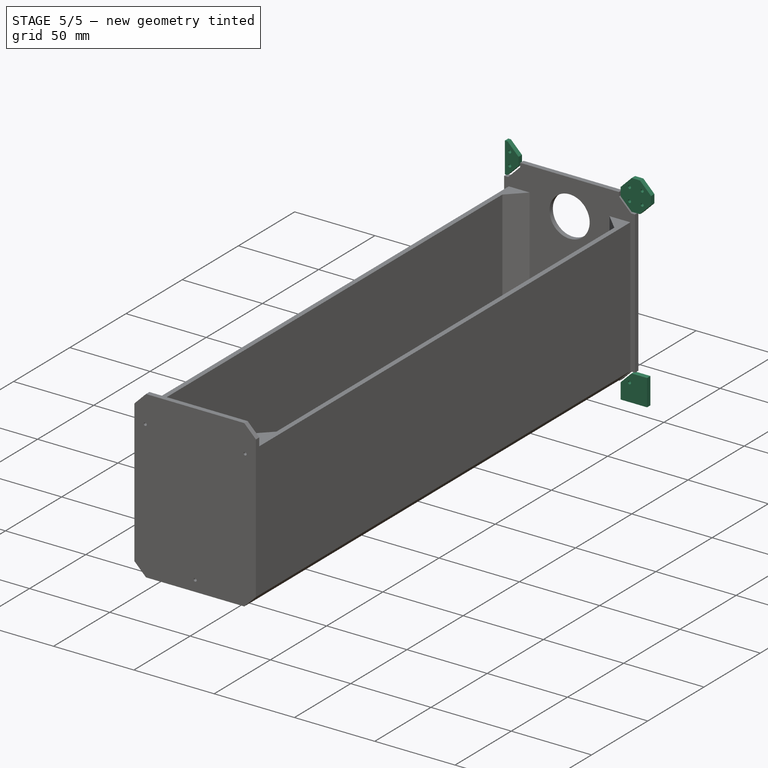
[diagram: stage 5 of 5 — iso view after this stage's code; geometry added in this stage tinted green]
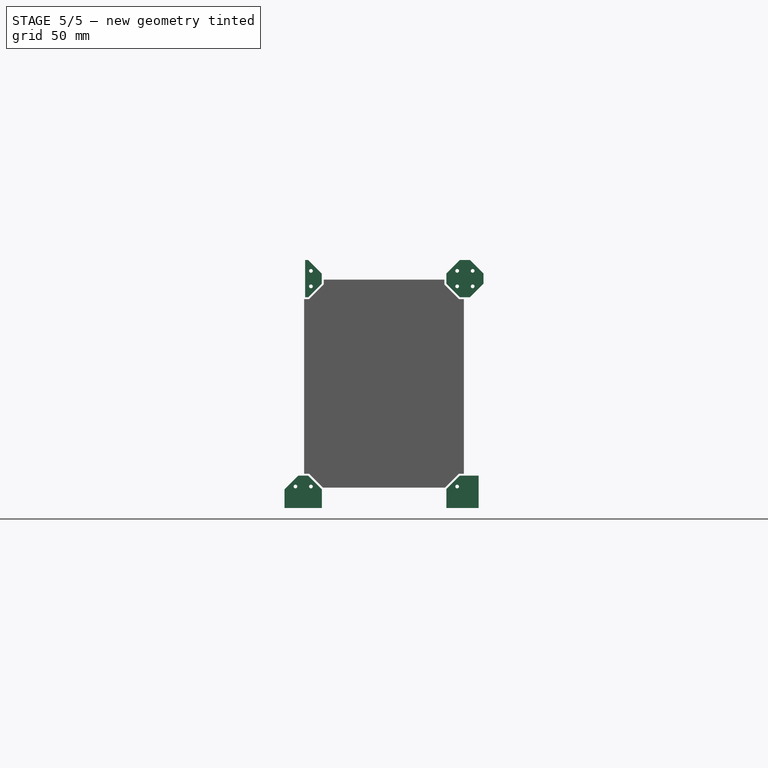
[diagram: stage 5 of 5 — front view after this stage's code; geometry added in this stage tinted green]
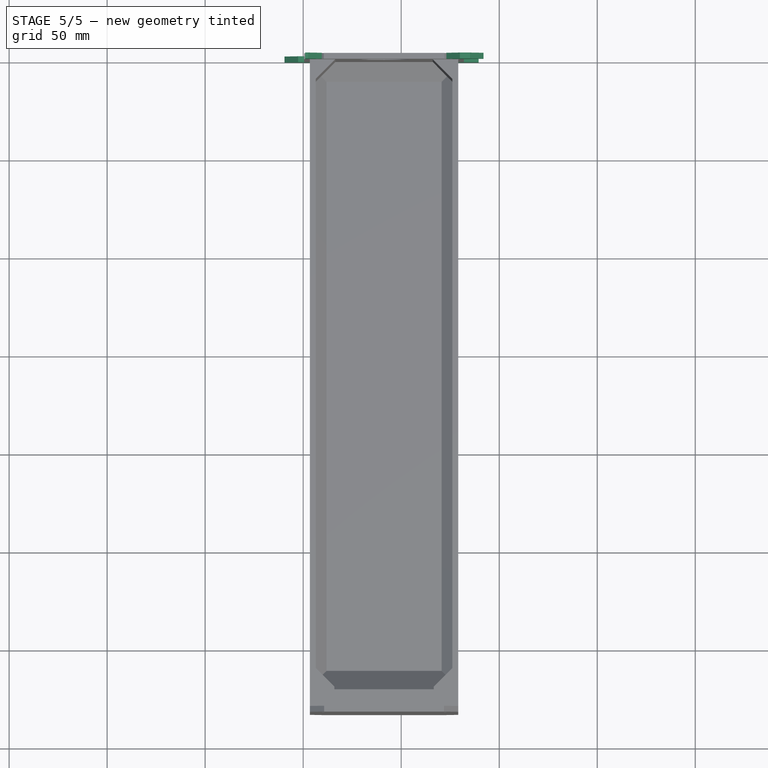
[diagram: stage 5 of 5 — top view after this stage's code; geometry added in this stage tinted green]
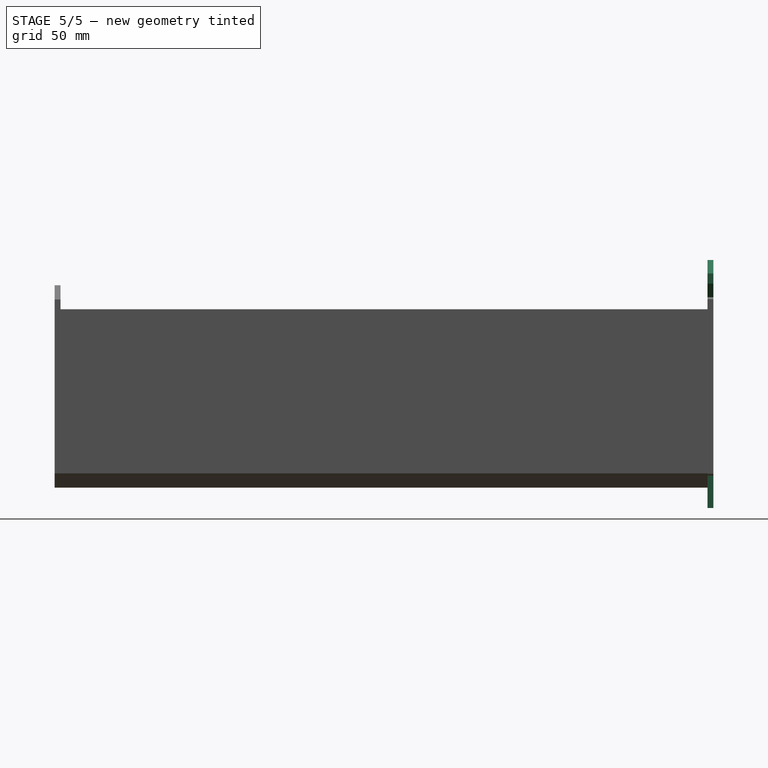
[diagram: stage 5 of 5 — right view after this stage's code; geometry added in this stage tinted green]
FEATURE [Sketcher::SketchObject] Sketch004  label="joint2_s"
  ExternalGeometry = -> [Extrude,Extrude002]
  FullyConstrained = false
  MapMode = 5
  Placement = pos=(0,1e-16,0) rot=(0,0.707107,0.707107;3.14159rad)
  Support = -> [Extrude]
  expr: Constraints[15] = <<dat>>.jm
  expr: Constraints[9] = <<dat>>.jm
  sketch-geometry (12):
    g0: Circle CenterX=-3.95 CenterY=106.05 CenterZ=0 NormalX=0 NormalY=0 NormalZ=1 AngleXU=0 Radius=0.95
    g1: LineSegment StartX=0 StartY=110 StartZ=0 EndX=-82.5 EndY=110 EndZ=0
    g2: Circle CenterX=-3.95 CenterY=113.95 CenterZ=0 NormalX=0 NormalY=0 NormalZ=1 AngleXU=0 Radius=0.95
    g3: LineSegment StartX=-9.48614 StartY=110 StartZ=0 EndX=-9.48614 EndY=107.414 EndZ=0
    g4: LineSegment StartX=-9.48614 StartY=107.414 StartZ=0 EndX=-2.58579 EndY=100.514 EndZ=0
    g5: LineSegment StartX=-2.58579 StartY=100.514 StartZ=0 EndX=0 EndY=100.514 EndZ=0
    g6: LineSegment StartX=-9.48614 StartY=107.414 StartZ=0 EndX=-10.1933 EndY=106.707 EndZ=0
    g7: LineSegment StartX=-9.48614 StartY=110 StartZ=0 EndX=-9.48614 EndY=112.586 EndZ=0
    g8: LineSegment StartX=-9.48614 StartY=112.586 StartZ=0 EndX=-2.58579 EndY=119.486 EndZ=0
    g9: LineSegment StartX=-1 StartY=100.514 StartZ=0 EndX=-1 EndY=119.486 EndZ=0
    g10: LineSegment StartX=-1 StartY=119.486 StartZ=0 EndX=-2.58579 EndY=119.486 EndZ=0
    g11: LineSegment StartX=-2.58579 StartY=100.514 StartZ=0 EndX=-1 EndY=100.514 EndZ=0
  constraints (21):
    c: Symmetric(g2,g0,g1)
    c: Equal(g0,g2)
    c: PointOnObject(g3,g1)
    c: Vertical(g3)
    c: Coincident(g4,g3)
    c: Coincident(g5,g4)
    c: Horizontal(g5)
    c: Coincident(g6,g3)
    c: Perpendicular(g4,g6)
    c: Distance(g6) = 1
    c: Coincident(g7,g3)
    c: Coincident(g8,g7)
    c: PointOnObject(g9,g5)
    c: Coincident(g10,g9)
    c: Coincident(g10,g8)
    c: DistanceX(g9,g5) = 1
    c: Symmetric(g3,g7,g3)
    c: Symmetric(g9,g9,g1)
    c: Symmetric(g8,g4,g1)
    c: Coincident(g11,g4)
    c: Coincident(g11,g9)
FEATURE [Part::Extrusion] Extrude004  label="joint2_e"
  Base = -> Sketch004
  Dir = (0,1,-2e-16)
  DirMode = 2
  FaceMakerClass = Part::FaceMakerBullseye
  LengthFwd = 3
  LengthRev = 0
  Solid = true
  Symmetric = false
  expr: LengthFwd = <<dat>>.dfy
FEATURE [Sketcher::SketchObject] Sketch005  label="joint4_s"
  ExternalGeometry = -> [Extrude,Extrude002]
  FullyConstrained = true
  MapMode = 5
  Placement = pos=(0,1e-16,0) rot=(0,0.707107,0.707107;3.14159rad)
  Support = -> [Extrude]
  expr: Constraints[6] = <<dat>>.jm
  expr: Constraints[18] = <<dat>>.jm
  expr: Constraints[19] = <<dat>>.jm
  expr: Constraints[20] = <<dat>>.jm
  sketch-geometry (15):
    g0: Circle CenterX=-78.55 CenterY=106.05 CenterZ=0 NormalX=0 NormalY=0 NormalZ=1 AngleXU=0 Radius=0.95
    g1: Circle CenterX=-78.55 CenterY=113.95 CenterZ=0 NormalX=0 NormalY=0 NormalZ=1 AngleXU=0 Radius=0.95
    g2: Circle CenterX=-86.45 CenterY=106.05 CenterZ=0 NormalX=0 NormalY=0 NormalZ=1 AngleXU=0 Radius=0.95
    g3: Circle CenterX=-86.45 CenterY=113.95 CenterZ=0 NormalX=0 NormalY=0 NormalZ=1 AngleXU=0 Radius=0.95
    g4: LineSegment StartX=-82.5 StartY=110 StartZ=0 EndX=-11.4861 EndY=110 EndZ=0
    g5: LineSegment StartX=-85.0858 StartY=100.514 StartZ=0 EndX=-79.9142 EndY=100.514 EndZ=0
    g6: LineSegment StartX=-82.5 StartY=110 StartZ=0 EndX=-82.5 EndY=0 EndZ=0
    g7: LineSegment StartX=-73.0139 StartY=112.586 StartZ=0 EndX=-73.0139 EndY=107.414 EndZ=0
    g8: LineSegment StartX=-73.0139 StartY=107.414 StartZ=0 EndX=-79.9142 EndY=100.514 EndZ=0
    g9: LineSegment StartX=-79.2071 StartY=99.8067 StartZ=0 EndX=-79.9142 EndY=100.514 EndZ=0
    g10: LineSegment StartX=-85.0858 StartY=100.514 StartZ=0 EndX=-91.9861 EndY=107.414 EndZ=0
    g11: LineSegment StartX=-91.9861 StartY=107.414 StartZ=0 EndX=-91.9861 EndY=112.586 EndZ=0
    g12: LineSegment StartX=-91.9861 StartY=112.586 StartZ=0 EndX=-85.0858 EndY=119.486 EndZ=0
    g13: LineSegment StartX=-85.0858 StartY=119.486 StartZ=0 EndX=-79.9142 EndY=119.486 EndZ=0
    g14: LineSegment StartX=-79.9142 StartY=119.486 StartZ=0 EndX=-73.0139 EndY=112.586 EndZ=0
  constraints (34):
    c: Coincident(g0,g-3)
    c: Equal(g-3,g0)
    c: Equal(g1,g0)
    c: Equal(g2,g0)
    c: Equal(g3,g1)
    c: PointOnObject(g4,g-8)
    c: DistanceX(g4,g-6) = 1
    c: Symmetric(g3,g0,g-8)
    c: Symmetric(g1,g2,g-8)
    c: Coincident(g4,g-8)
    c: Symmetric(g1,g0,g4)
    c: Coincident(g6,g4)
    c: Coincident(g6,g-7)
    c: Coincident(g8,g7)
    c: Coincident(g8,g5)
    c: PointOnObject(g9,g-9)
    c: Coincident(g9,g5)
    c: Perpendicular(g8,g9)
    c: Distance(g9) = 1
    c: DistanceY(g-10,g5) = 1
    c: DistanceX(g7,g-9) = 1
    c: Symmetric(g5,g5,g6)
    c: Symmetric(g7,g7,g4)
    c: Parallel(g-9,g8)
    c: Coincident(g10,g5)
    c: Coincident(g11,g10)
    c: Coincident(g12,g11)
    c: Coincident(g13,g12)
    c: Coincident(g14,g13)
    c: Coincident(g14,g7)
    c: Symmetric(g13,g5,g4)
    c: Symmetric(g12,g5,g4)
    c: Symmetric(g11,g7,g4)
    c: Symmetric(g10,g7,g4)
FEATURE [Part::Extrusion] Extrude005  label="joint4_e"
  Base = -> Sketch005
  Dir = (0,1,-2e-16)
  DirMode = 2
  FaceMakerClass = Part::FaceMakerBullseye
  LengthFwd = 3
  LengthRev = 0
  Solid = true
  Symmetric = false
  expr: LengthFwd = <<dat>>.dfy
FEATURE [Sketcher::SketchObject] Sketch006  label="wallj_s"
  ExternalGeometry = -> [Extrude]
  FullyConstrained = true
  MapMode = 5
  Placement = pos=(0,1e-16,0) rot=(0,0.707107,0.707107;3.14159rad)
  Support = -> [Extrude]
  expr: Constraints[18] = (<<dat>>.w - <<dat>>.jm) / 2
  expr: Constraints[11] = <<dat>>.jm
  expr: Constraints[12] = <<dat>>.jm
  sketch-geometry (8):
    g0: LineSegment StartX=-89.5 StartY=9.48614 StartZ=0 EndX=-89.5 EndY=-7 EndZ=0
    g1: LineSegment StartX=-89.5 StartY=-7 StartZ=0 EndX=-73.0139 EndY=-7 EndZ=0
    g2: LineSegment StartX=-73.0139 StartY=-7 StartZ=0 EndX=-73.0139 EndY=2.68478 EndZ=0
    g3: LineSegment StartX=-79.8152 StartY=9.48614 StartZ=0 EndX=-89.5 EndY=9.48614 EndZ=0
    g4: LineSegment StartX=-73.0139 StartY=2.68478 StartZ=0 EndX=-79.8152 EndY=9.48614 EndZ=0
    g5: LineSegment StartX=-79.8152 StartY=9.48614 StartZ=0 EndX=-79.1576 EndY=10.1438 EndZ=0
    g6: GeomPoint X=-82.5 Y=9.48614 Z=0
    g7: Circle CenterX=-78.55 CenterY=3.95 CenterZ=0 NormalX=0 NormalY=0 NormalZ=1 AngleXU=0 Radius=0.95
  constraints (22):
    c: Vertical(g0)
    c: Coincident(g1,g0)
    c: Horizontal(g1)
    c: Coincident(g2,g1)
    c: Vertical(g2)
    c: Coincident(g3,g0)
    c: Horizontal(g3)
    c: Equal(g2,g3)
    c: Coincident(g4,g2)
    c: Coincident(g4,g3)
    c: Parallel(g4,g-5)
    c: DistanceX(g2,g-5) = 1
    c: DistanceY(g3,g-5) = 1
    c: Coincident(g5,g3)
    c: PointOnObject(g5,g-5)
    c: Perpendicular(g-5,g5)
    c: PointOnObject(g6,g3)
    c: PointOnObject(g6,g-3)
    c: DistanceX(g0,g6) = 7
    c: Distance(g5) = 0.93
    c: Coincident(g7,g-6)
    c: Equal(g-6,g7)
FEATURE [Part::Extrusion] Extrude006  label="wallj1_e"
  Base = -> Sketch006
  Dir = (0,1,-2e-16)
  DirMode = 2
  FaceMakerClass = Part::FaceMakerBullseye
  LengthFwd = 3
  LengthRev = 0
  Solid = true
  Symmetric = false
  expr: LengthFwd = <<dat>>.dfy
FEATURE [Sketcher::SketchObject] Sketch007  label="wallj2_s"
  ExternalGeometry = -> [Chamfer001]
  FullyConstrained = false
  MapMode = 5
  Placement = pos=(0,1e-16,0) rot=(0,0.707107,0.707107;3.14159rad)
  Support = -> [Extrude]
  expr: Constraints[10] = <<dat>>.jm
  expr: Constraints[11] = 0.75mm
  expr: Constraints[14] = (<<dat>>.w - <<dat>>.jm) / 2
  sketch-geometry (12):
    g0: Circle CenterX=-3.95 CenterY=3.95 CenterZ=0 NormalX=0 NormalY=0 NormalZ=1 AngleXU=0 Radius=0.95
    g1: LineSegment StartX=-9.53614 StartY=2.53579 StartZ=0 EndX=-2.58579 EndY=9.48614 EndZ=0
    g2: LineSegment StartX=-2.58579 StartY=9.48614 StartZ=0 EndX=0 EndY=9.48614 EndZ=0
    g3: LineSegment StartX=-9.53614 StartY=2.53579 StartZ=0 EndX=-9.53614 EndY=0 EndZ=0
    g4: LineSegment StartX=-9.53614 StartY=0 StartZ=0 EndX=-9.53614 EndY=-7 EndZ=0
    g5: LineSegment StartX=-9.53614 StartY=-7 StartZ=0 EndX=9.53614 EndY=-7 EndZ=0
    g6: LineSegment StartX=0 StartY=9.48614 StartZ=0 EndX=2.58579 EndY=9.48614 EndZ=0
    g7: GeomPoint X=9.53614 Y=2.53579 Z=0
    g8: LineSegment StartX=2.58579 StartY=9.48614 StartZ=0 EndX=9.53614 EndY=2.53579 EndZ=0
    g9: LineSegment StartX=9.53614 StartY=2.53579 StartZ=0 EndX=9.53614 EndY=-7 EndZ=0
    g10: GeomPoint X=3.95 Y=3.95 Z=0
    g11: Circle CenterX=3.95 CenterY=3.95 CenterZ=0 NormalX=0 NormalY=0 NormalZ=1 AngleXU=0 Radius=0.95
  constraints (28):
    c: Coincident(g0,g-3)
    c: Equal(g0,g-3)
    c: PointOnObject(g1,g-4)
    c: PointOnObject(g1,g-4)
    c: Coincident(g2,g1)
    c: PointOnObject(g2,g-2)
    c: Horizontal(g2)
    c: Coincident(g3,g1)
    c: PointOnObject(g3,g-1)
    c: Vertical(g3)
    c: DistanceY(g1,g-5) = 1
    c: DistanceX(g-6,g1) = 0.75
    c: Coincident(g4,g3)
    c: Vertical(g4)
    c: DistanceY(g4,g4) = 7
    c: Coincident(g5,g4)
    c: Horizontal(g5)
    c: Coincident(g6,g2)
    c: Symmetric(g6,g1,g2)
    c: Symmetric(g7,g1,g-2)
    c: Coincident(g8,g6)
    c: Coincident(g8,g7)
    c: Coincident(g9,g8)
    c: Vertical(g9)
    c: Coincident(g9,g5)
    c: Symmetric(g10,g0,g-2)
    c: Coincident(g11,g10)
    c: Equal(g11,g0)
FEATURE [Part::Extrusion] Extrude007  label="wallj2_e"
  Base = -> Sketch007
  Dir = (0,1,-2e-16)
  DirMode = 2
  FaceMakerClass = Part::FaceMakerBullseye
  LengthFwd = 3
  LengthRev = 0
  Solid = true
  Symmetric = false
  expr: LengthFwd = <<dat>>.dfy
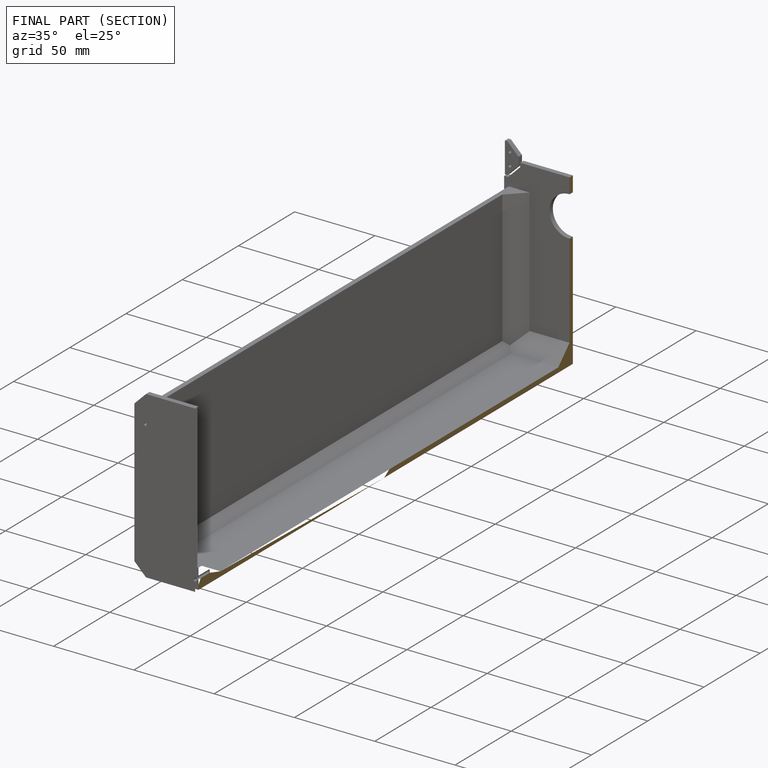
[diagram: finished part — half-section view (interior)]
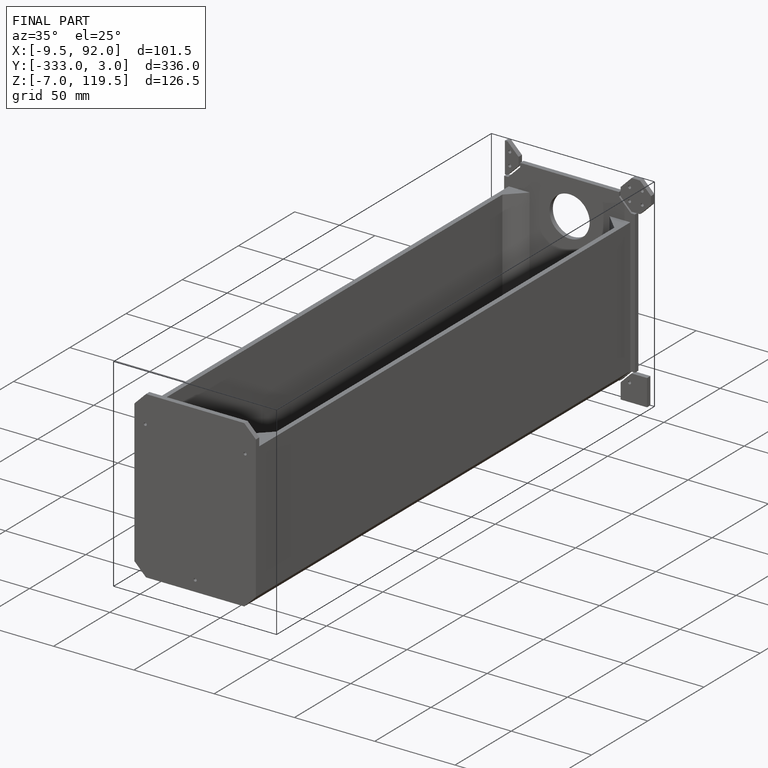
[diagram: finished part — iso view with bounding-box wireframe]
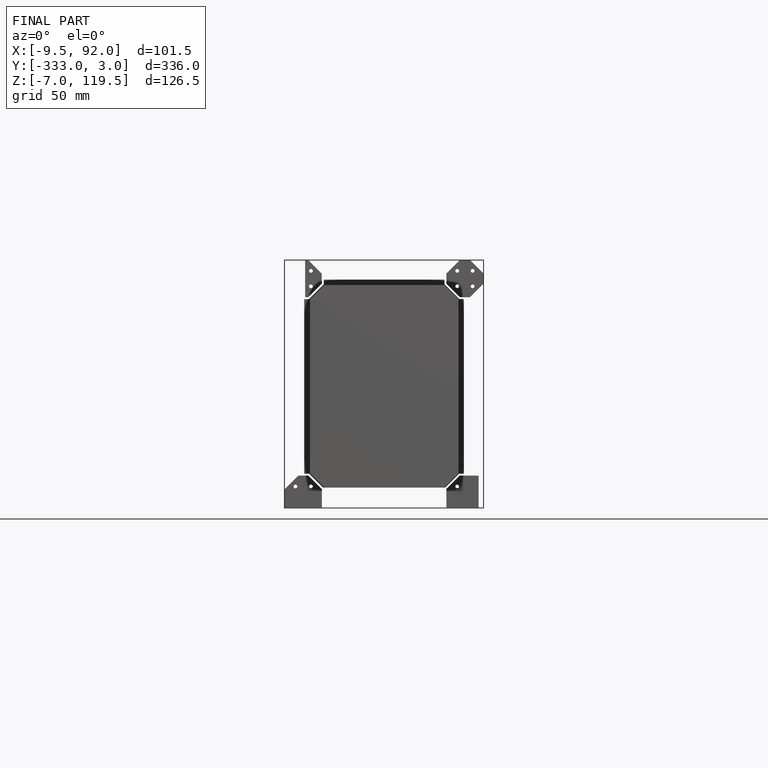
[diagram: finished part — front view with bounding-box wireframe]
